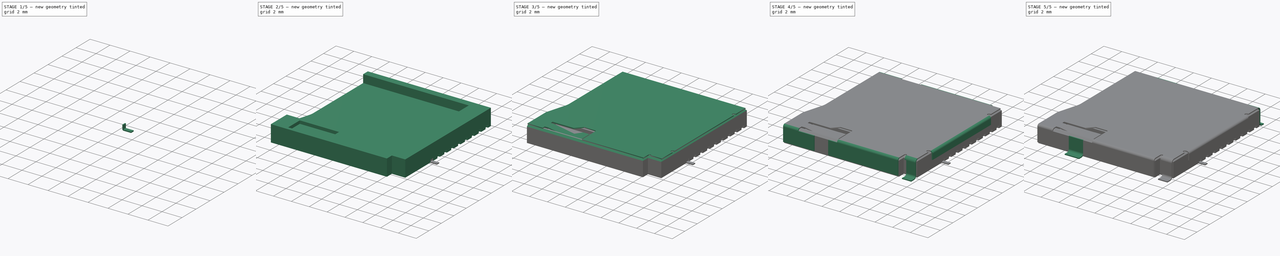
[diagram: build sequence overview — one tinted view per stage of 5, left to right]
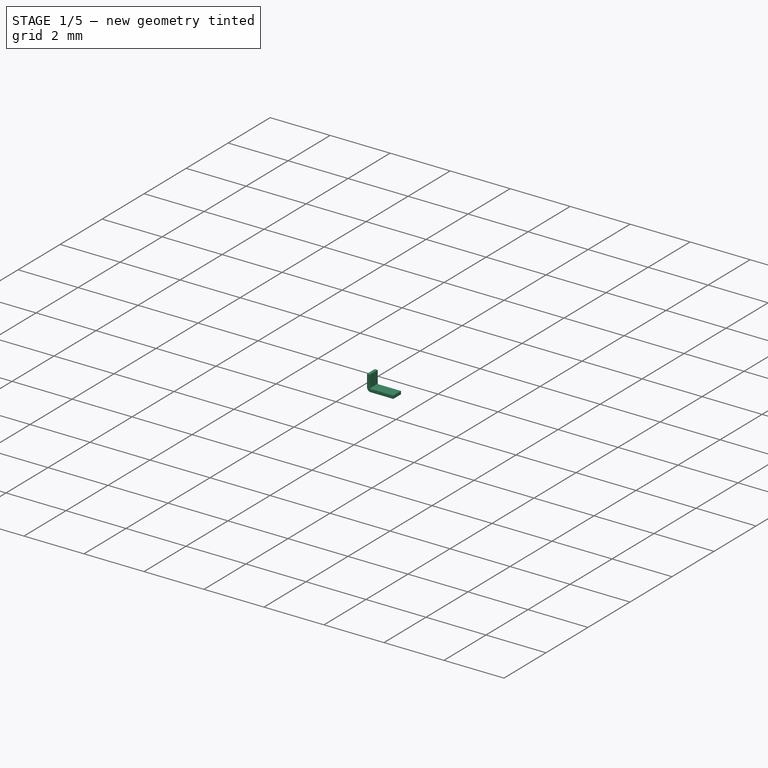
[diagram: stage 1 of 5 — iso view after this stage's code; geometry added in this stage tinted green]
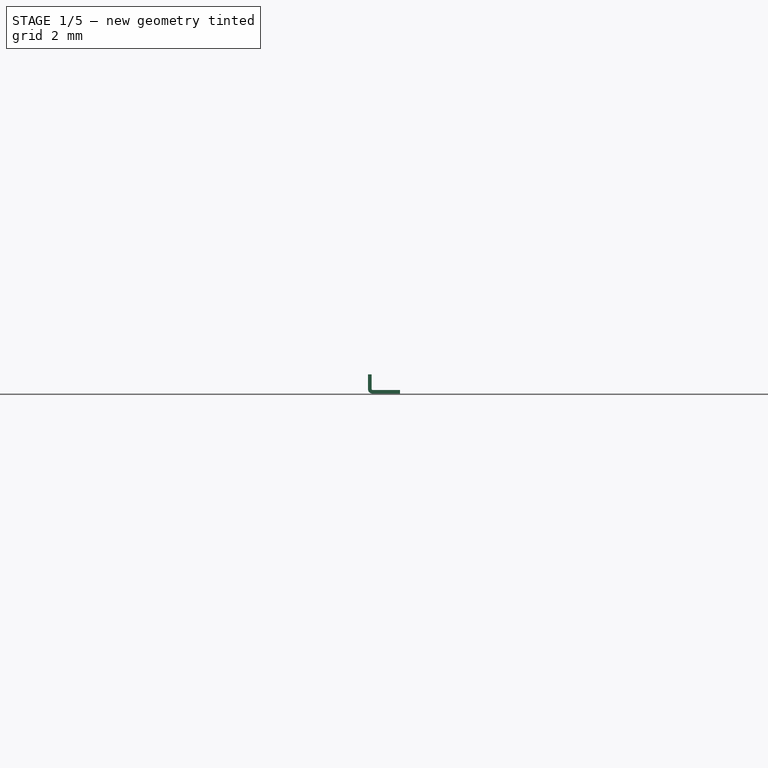
[diagram: stage 1 of 5 — front view after this stage's code; geometry added in this stage tinted green]
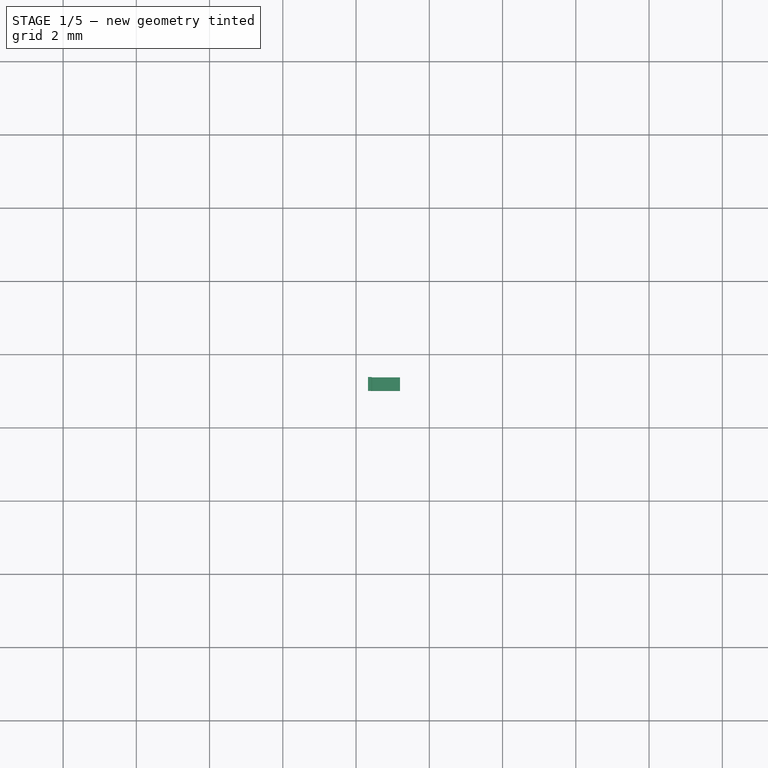
[diagram: stage 1 of 5 — top view after this stage's code; geometry added in this stage tinted green]
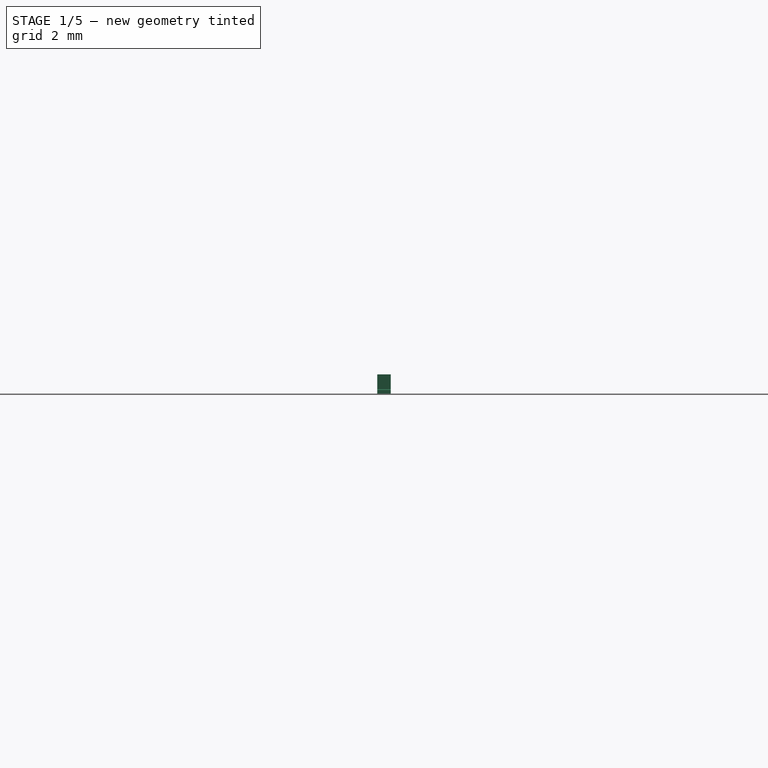
[diagram: stage 1 of 5 — right view after this stage's code; geometry added in this stage tinted green]
FCSTD DOCUMENT  (FreeCAD 0.18R4 (GitTag))
Label: TF-01A
License: All rights reserved
LicenseURL: http://en.wikipedia.org/wiki/All_rights_reserved
objects: Sketcher::SketchObject×16, PartDesign::FeaturePython×14, PartDesign::Pad×12, PartDesign::Body×11, PartDesign::Pocket×4, Part::Feature×3, PartDesign::Chamfer×2, Image::ImagePlane×1, PartDesign::Fillet×1
note: 79 computed .brp shape members not serialized (recipe doc carries the construction recipe); baked Part::Feature solids carry a one-line shape summary decoded from their .brp

FEATURE [PartDesign::Body] Body004  label="Pin2"
  Group = -> [Sketch009,Pad005]
  Origin = -> Origin004
  Placement = pos=(0,1.1,0) rot=(0,0,1;0rad)
  Tip = -> Pad005
FEATURE [Sketcher::SketchObject] Sketch010
  AttachmentOffset = pos=(14.45,0.1,-5.01) rot=(0,0,1;0rad)
  MapMode = 5
  Placement = pos=(14.45,5.01,0.1) rot=(1,0,0;1.5708rad)
  Support = -> [XZ_Plane005]
  sketch-geometry (8):
    g0: LineSegment StartX=-0.124999 StartY=0.425 StartZ=0 EndX=-0.124999 EndY=0.025 EndZ=0
    g1: LineSegment StartX=9.69462e-07 StartY=-0.1 StartZ=0 EndX=0.750001 EndY=-0.1 EndZ=0
    g2: LineSegment StartX=0.750001 StartY=-0.1 StartZ=0 EndX=0.750001 EndY=0 EndZ=0
    g3: LineSegment StartX=0.750001 StartY=0 StartZ=0 EndX=0 EndY=0 EndZ=0
    g4: LineSegment StartX=-0.024999 StartY=0.024999 StartZ=0 EndX=-0.024999 EndY=0.425 EndZ=0
    g5: LineSegment StartX=-0.024999 StartY=0.425 StartZ=0 EndX=-0.124999 EndY=0.425 EndZ=0
    g6: ArcOfCircle CenterX=9.69462e-07 CenterY=0.025 CenterZ=0 NormalX=0 NormalY=0 NormalZ=1 AngleXU=0 Radius=0.125 StartAngle=3.14159 EndAngle=4.71239
    g7: ArcOfCircle CenterX=0 CenterY=0.024999 CenterZ=0 NormalX=0 NormalY=0 NormalZ=1 AngleXU=0 Radius=0.024999 StartAngle=3.14159 EndAngle=4.71239
  constraints (21):
    c: Vertical(g0)
    c: Horizontal(g1)
    c: Coincident(g1,g2)
    c: Coincident(g2,g3)
    c: Coincident(g4,g5)
    c: Coincident(g5,g0)
    c: Horizontal(g5)
    c: Horizontal(g3)
    c: Vertical(g4)
    c: Vertical(g2)
    c: DistanceY(g2,g2) = 0.1
    c: Tangent(g1,g6) = -1.5708
    c: Tangent(g0,g6) = -1.5708
    c: Diameter(g6) = 0.25
    c: Tangent(g4,g7) = 1.5708
    c: Tangent(g3,g7) = 1.5708
    c: Equal(g2,g5)
    c: Distance(g3,g1) = 0.1
    c: Coincident(g3,g-1)
    c: DistanceX(g1,g1) = 0.75
    c: DistanceY(g0,g0) = 0.4
FEATURE [PartDesign::Pad] Pad006
  Length = 0.37
  Length2 = 100
  Placement = pos=(0,0,0) rot=(1,0,0;1.5708rad)
  Profile = -> Sketch010
  Reversed = true
  Type = 0
FEATURE [PartDesign::Body] Body005  label="Pin3"
  Group = -> [Sketch010,Pad006]
  Origin = -> Origin005
  Placement = pos=(0,2.2,0) rot=(0,0,1;0rad)
  Tip = -> Pad006
FEATURE [Sketcher::SketchObject] Sketch011
  AttachmentOffset = pos=(14.45,0.1,-5.01) rot=(0,0,1;0rad)
  MapMode = 5
  Placement = pos=(14.45,5.01,0.1) rot=(1,0,0;1.5708rad)
  Support = -> [XZ_Plane006]
  sketch-geometry (8):
    g0: LineSegment StartX=-0.124999 StartY=0.425 StartZ=0 EndX=-0.124999 EndY=0.025 EndZ=0
    g1: LineSegment StartX=9.69462e-07 StartY=-0.1 StartZ=0 EndX=0.750001 EndY=-0.1 EndZ=0
    g2: LineSegment StartX=0.750001 StartY=-0.1 StartZ=0 EndX=0.750001 EndY=0 EndZ=0
    g3: LineSegment StartX=0.750001 StartY=0 StartZ=0 EndX=0 EndY=0 EndZ=0
    g4: LineSegment StartX=-0.024999 StartY=0.024999 StartZ=0 EndX=-0.024999 EndY=0.425 EndZ=0
    g5: LineSegment StartX=-0.024999 StartY=0.425 StartZ=0 EndX=-0.124999 EndY=0.425 EndZ=0
    g6: ArcOfCircle CenterX=9.69462e-07 CenterY=0.025 CenterZ=0 NormalX=0 NormalY=0 NormalZ=1 AngleXU=0 Radius=0.125 StartAngle=3.14159 EndAngle=4.71239
    g7: ArcOfCircle CenterX=0 CenterY=0.024999 CenterZ=0 NormalX=0 NormalY=0 NormalZ=1 AngleXU=0 Radius=0.024999 StartAngle=3.14159 EndAngle=4.71239
  constraints (21):
    c: Vertical(g0)
    c: Horizontal(g1)
    c: Coincident(g1,g2)
    c: Coincident(g2,g3)
    c: Coincident(g4,g5)
    c: Coincident(g5,g0)
    c: Horizontal(g5)
    c: Horizontal(g3)
    c: Vertical(g4)
    c: Vertical(g2)
    c: DistanceY(g2,g2) = 0.1
    c: Tangent(g1,g6) = -1.5708
    c: Tangent(g0,g6) = -1.5708
    c: Diameter(g6) = 0.25
    c: Tangent(g4,g7) = 1.5708
    c: Tangent(g3,g7) = 1.5708
    c: Equal(g2,g5)
    c: Distance(g3,g1) = 0.1
    c: Coincident(g3,g-1)
    c: DistanceX(g1,g1) = 0.75
    c: DistanceY(g0,g0) = 0.4
FEATURE [PartDesign::Pad] Pad007
  Length = 0.37
  Length2 = 100
  Placement = pos=(0,0,0) rot=(1,0,0;1.5708rad)
  Profile = -> Sketch011
  Reversed = true
  Type = 0
FEATURE [PartDesign::Body] Body006  label="Pin4"
  Group = -> [Sketch011,Pad007]
  Origin = -> Origin006
  Placement = pos=(0,3.3,0) rot=(0,0,1;0rad)
  Tip = -> Pad007
FEATURE [Sketcher::SketchObject] Sketch012
  AttachmentOffset = pos=(14.45,0.1,-5.01) rot=(0,0,1;0rad)
  MapMode = 5
  Placement = pos=(14.45,5.01,0.1) rot=(1,0,0;1.5708rad)
  Support = -> [XZ_Plane007]
  sketch-geometry (8):
    g0: LineSegment StartX=-0.124999 StartY=0.425 StartZ=0 EndX=-0.124999 EndY=0.025 EndZ=0
    g1: LineSegment StartX=9.69462e-07 StartY=-0.1 StartZ=0 EndX=0.750001 EndY=-0.1 EndZ=0
    g2: LineSegment StartX=0.750001 StartY=-0.1 StartZ=0 EndX=0.750001 EndY=0 EndZ=0
    g3: LineSegment StartX=0.750001 StartY=0 StartZ=0 EndX=0 EndY=0 EndZ=0
    g4: LineSegment StartX=-0.024999 StartY=0.024999 StartZ=0 EndX=-0.024999 EndY=0.425 EndZ=0
    g5: LineSegment StartX=-0.024999 StartY=0.425 StartZ=0 EndX=-0.124999 EndY=0.425 EndZ=0
    g6: ArcOfCircle CenterX=9.69462e-07 CenterY=0.025 CenterZ=0 NormalX=0 NormalY=0 NormalZ=1 AngleXU=0 Radius=0.125 StartAngle=3.14159 EndAngle=4.71239
    g7: ArcOfCircle CenterX=0 CenterY=0.024999 CenterZ=0 NormalX=0 NormalY=0 NormalZ=1 AngleXU=0 Radius=0.024999 StartAngle=3.14159 EndAngle=4.71239
  constraints (21):
    c: Vertical(g0)
    c: Horizontal(g1)
    c: Coincident(g1,g2)
    c: Coincident(g2,g3)
    c: Coincident(g4,g5)
    c: Coincident(g5,g0)
    c: Horizontal(g5)
    c: Horizontal(g3)
    c: Vertical(g4)
    c: Vertical(g2)
    c: DistanceY(g2,g2) = 0.1
    c: Tangent(g1,g6) = -1.5708
    c: Tangent(g0,g6) = -1.5708
    c: Diameter(g6) = 0.25
    c: Tangent(g4,g7) = 1.5708
    c: Tangent(g3,g7) = 1.5708
    c: Equal(g2,g5)
    c: Distance(g3,g1) = 0.1
    c: Coincident(g3,g-1)
    c: DistanceX(g1,g1) = 0.75
    c: DistanceY(g0,g0) = 0.4
FEATURE [PartDesign::Pad] Pad008
  Length = 0.37
  Length2 = 100
  Placement = pos=(0,0,0) rot=(1,0,0;1.5708rad)
  Profile = -> Sketch012
  Reversed = true
  Type = 0
FEATURE [PartDesign::Body] Body007  label="Pin5"
  Group = -> [Sketch012,Pad008]
  Origin = -> Origin007
  Placement = pos=(0,4.4,0) rot=(0,0,1;0rad)
  Tip = -> Pad008
FEATURE [Sketcher::SketchObject] Sketch013
  AttachmentOffset = pos=(14.45,0.1,-5.01) rot=(0,0,1;0rad)
  MapMode = 5
  Placement = pos=(14.45,5.01,0.1) rot=(1,0,0;1.5708rad)
  Support = -> [XZ_Plane008]
  sketch-geometry (8):
    g0: LineSegment StartX=-0.124999 StartY=0.425 StartZ=0 EndX=-0.124999 EndY=0.025 EndZ=0
    g1: LineSegment StartX=9.69462e-07 StartY=-0.1 StartZ=0 EndX=0.750001 EndY=-0.1 EndZ=0
    g2: LineSegment StartX=0.750001 StartY=-0.1 StartZ=0 EndX=0.750001 EndY=0 EndZ=0
    g3: LineSegment StartX=0.750001 StartY=0 StartZ=0 EndX=0 EndY=0 EndZ=0
    g4: LineSegment StartX=-0.024999 StartY=0.024999 StartZ=0 EndX=-0.024999 EndY=0.425 EndZ=0
    g5: LineSegment StartX=-0.024999 StartY=0.425 StartZ=0 EndX=-0.124999 EndY=0.425 EndZ=0
    g6: ArcOfCircle CenterX=9.69462e-07 CenterY=0.025 CenterZ=0 NormalX=0 NormalY=0 NormalZ=1 AngleXU=0 Radius=0.125 StartAngle=3.14159 EndAngle=4.71239
    g7: ArcOfCircle CenterX=0 CenterY=0.024999 CenterZ=0 NormalX=0 NormalY=0 NormalZ=1 AngleXU=0 Radius=0.024999 StartAngle=3.14159 EndAngle=4.71239
  constraints (21):
    c: Vertical(g0)
    c: Horizontal(g1)
    c: Coincident(g1,g2)
    c: Coincident(g2,g3)
    c: Coincident(g4,g5)
    c: Coincident(g5,g0)
    c: Horizontal(g5)
    c: Horizontal(g3)
    c: Vertical(g4)
    c: Vertical(g2)
    c: DistanceY(g2,g2) = 0.1
    c: Tangent(g1,g6) = -1.5708
    c: Tangent(g0,g6) = -1.5708
    c: Diameter(g6) = 0.25
    c: Tangent(g4,g7) = 1.5708
    c: Tangent(g3,g7) = 1.5708
    c: Equal(g2,g5)
    c: Distance(g3,g1) = 0.1
    c: Coincident(g3,g-1)
    c: DistanceX(g1,g1) = 0.75
    c: DistanceY(g0,g0) = 0.4
FEATURE [PartDesign::Pad] Pad009
  Length = 0.37
  Length2 = 100
  Placement = pos=(0,0,0) rot=(1,0,0;1.5708rad)
  Profile = -> Sketch013
  Reversed = true
  Type = 0
FEATURE [PartDesign::Body] Body008  label="Pin6"
  Group = -> [Sketch013,Pad009]
  Origin = -> Origin008
  Placement = pos=(0,5.5,0) rot=(0,0,1;0rad)
  Tip = -> Pad009
FEATURE [Sketcher::SketchObject] Sketch014
  AttachmentOffset = pos=(14.45,0.1,-5.01) rot=(0,0,1;0rad)
  MapMode = 5
  Placement = pos=(14.45,5.01,0.1) rot=(1,0,0;1.5708rad)
  Support = -> [XZ_Plane009]
  sketch-geometry (8):
    g0: LineSegment StartX=-0.124999 StartY=0.425 StartZ=0 EndX=-0.124999 EndY=0.025 EndZ=0
    g1: LineSegment StartX=9.69462e-07 StartY=-0.1 StartZ=0 EndX=0.750001 EndY=-0.1 EndZ=0
    g2: LineSegment StartX=0.750001 StartY=-0.1 StartZ=0 EndX=0.750001 EndY=0 EndZ=0
    g3: LineSegment StartX=0.750001 StartY=0 StartZ=0 EndX=0 EndY=0 EndZ=0
    g4: LineSegment StartX=-0.024999 StartY=0.024999 StartZ=0 EndX=-0.024999 EndY=0.425 EndZ=0
    g5: LineSegment StartX=-0.024999 StartY=0.425 StartZ=0 EndX=-0.124999 EndY=0.425 EndZ=0
    g6: ArcOfCircle CenterX=9.69462e-07 CenterY=0.025 CenterZ=0 NormalX=0 NormalY=0 NormalZ=1 AngleXU=0 Radius=0.125 StartAngle=3.14159 EndAngle=4.71239
    g7: ArcOfCircle CenterX=0 CenterY=0.024999 CenterZ=0 NormalX=0 NormalY=0 NormalZ=1 AngleXU=0 Radius=0.024999 StartAngle=3.14159 EndAngle=4.71239
  constraints (21):
    c: Vertical(g0)
    c: Horizontal(g1)
    c: Coincident(g1,g2)
    c: Coincident(g2,g3)
    c: Coincident(g4,g5)
    c: Coincident(g5,g0)
    c: Horizontal(g5)
    c: Horizontal(g3)
    c: Vertical(g4)
    c: Vertical(g2)
    c: DistanceY(g2,g2) = 0.1
    c: Tangent(g1,g6) = -1.5708
    c: Tangent(g0,g6) = -1.5708
    c: Diameter(g6) = 0.25
    c: Tangent(g4,g7) = 1.5708
    c: Tangent(g3,g7) = 1.5708
    c: Equal(g2,g5)
    c: Distance(g3,g1) = 0.1
    c: Coincident(g3,g-1)
    c: DistanceX(g1,g1) = 0.75
    c: DistanceY(g0,g0) = 0.4
FEATURE [PartDesign::Pad] Pad010
  Length = 0.37
  Length2 = 100
  Placement = pos=(0,0,0) rot=(1,0,0;1.5708rad)
  Profile = -> Sketch014
  Reversed = true
  Type = 0
FEATURE [PartDesign::Body] Body009  label="Pin7"
  Group = -> [Sketch014,Pad010]
  Origin = -> Origin009
  Placement = pos=(0,6.6,0) rot=(0,0,1;0rad)
  Tip = -> Pad010
FEATURE [Sketcher::SketchObject] Sketch015
  AttachmentOffset = pos=(14.45,0.1,-5.01) rot=(0,0,1;0rad)
  MapMode = 5
  Placement = pos=(14.45,5.01,0.1) rot=(1,0,0;1.5708rad)
  Support = -> [XZ_Plane010]
  sketch-geometry (8):
    g0: LineSegment StartX=-0.124999 StartY=0.425 StartZ=0 EndX=-0.124999 EndY=0.025 EndZ=0
    g1: LineSegment StartX=9.69462e-07 StartY=-0.1 StartZ=0 EndX=0.750001 EndY=-0.1 EndZ=0
    g2: LineSegment StartX=0.750001 StartY=-0.1 StartZ=0 EndX=0.750001 EndY=0 EndZ=0
    g3: LineSegment StartX=0.750001 StartY=0 StartZ=0 EndX=0 EndY=0 EndZ=0
    g4: LineSegment StartX=-0.024999 StartY=0.024999 StartZ=0 EndX=-0.024999 EndY=0.425 EndZ=0
    g5: LineSegment StartX=-0.024999 StartY=0.425 StartZ=0 EndX=-0.124999 EndY=0.425 EndZ=0
    g6: ArcOfCircle CenterX=9.69462e-07 CenterY=0.025 CenterZ=0 NormalX=0 NormalY=0 NormalZ=1 AngleXU=0 Radius=0.125 StartAngle=3.14159 EndAngle=4.71239
    g7: ArcOfCircle CenterX=0 CenterY=0.024999 CenterZ=0 NormalX=0 NormalY=0 NormalZ=1 AngleXU=0 Radius=0.024999 StartAngle=3.14159 EndAngle=4.71239
  constraints (21):
    c: Vertical(g0)
    c: Horizontal(g1)
    c: Coincident(g1,g2)
    c: Coincident(g2,g3)
    c: Coincident(g4,g5)
    c: Coincident(g5,g0)
    c: Horizontal(g5)
    c: Horizontal(g3)
    c: Vertical(g4)
    c: Vertical(g2)
    c: DistanceY(g2,g2) = 0.1
    c: Tangent(g1,g6) = -1.5708
    c: Tangent(g0,g6) = -1.5708
    c: Diameter(g6) = 0.25
    c: Tangent(g4,g7) = 1.5708
    c: Tangent(g3,g7) = 1.5708
    c: Equal(g2,g5)
    c: Distance(g3,g1) = 0.1
    c: Coincident(g3,g-1)
    c: DistanceX(g1,g1) = 0.75
    c: DistanceY(g0,g0) = 0.4
FEATURE [PartDesign::Pad] Pad011
  Length = 0.37
  Length2 = 100
  Placement = pos=(0,0,0) rot=(1,0,0;1.5708rad)
  Profile = -> Sketch015
  Reversed = true
  Type = 0
FEATURE [PartDesign::Body] Body010  label="Pin8"
  Group = -> [Sketch015,Pad011]
  Origin = -> Origin010
  Placement = pos=(0,7.7,0) rot=(0,0,1;0rad)
  Tip = -> Pad011
FEATURE [Sketcher::SketchObject] Sketch016
  AttachmentOffset = pos=(14.45,0.1,-5.01) rot=(0,0,1;0rad)
  MapMode = 5
  Placement = pos=(14.45,5.01,0.1) rot=(1,0,0;1.5708rad)
  Support = -> [XZ_Plane011]
  sketch-geometry (8):
    g0: LineSegment StartX=-0.124999 StartY=0.425 StartZ=0 EndX=-0.124999 EndY=0.025 EndZ=0
    g1: LineSegment StartX=9.69462e-07 StartY=-0.1 StartZ=0 EndX=0.750001 EndY=-0.1 EndZ=0
    g2: LineSegment StartX=0.750001 StartY=-0.1 StartZ=0 EndX=0.750001 EndY=0 EndZ=0
    g3: LineSegment StartX=0.750001 StartY=0 StartZ=0 EndX=0 EndY=0 EndZ=0
    g4: LineSegment StartX=-0.024999 StartY=0.024999 StartZ=0 EndX=-0.024999 EndY=0.425 EndZ=0
    g5: LineSegment StartX=-0.024999 StartY=0.425 StartZ=0 EndX=-0.124999 EndY=0.425 EndZ=0
    g6: ArcOfCircle CenterX=9.69462e-07 CenterY=0.025 CenterZ=0 NormalX=0 NormalY=0 NormalZ=1 AngleXU=0 Radius=0.125 StartAngle=3.14159 EndAngle=4.71239
    g7: ArcOfCircle CenterX=0 CenterY=0.024999 CenterZ=0 NormalX=0 NormalY=0 NormalZ=1 AngleXU=0 Radius=0.024999 StartAngle=3.14159 EndAngle=4.71239
  constraints (21):
    c: Vertical(g0)
    c: Horizontal(g1)
    c: Coincident(g1,g2)
    c: Coincident(g2,g3)
    c: Coincident(g4,g5)
    c: Coincident(g5,g0)
    c: Horizontal(g5)
    c: Horizontal(g3)
    c: Vertical(g4)
    c: Vertical(g2)
    c: DistanceY(g2,g2) = 0.1
    c: Tangent(g1,g6) = -1.5708
    c: Tangent(g0,g6) = -1.5708
    c: Diameter(g6) = 0.25
    c: Tangent(g4,g7) = 1.5708
    c: Tangent(g3,g7) = 1.5708
    c: Equal(g2,g5)
    c: Distance(g3,g1) = 0.1
    c: Coincident(g3,g-1)
    c: DistanceX(g1,g1) = 0.75
    c: DistanceY(g0,g0) = 0.4
FEATURE [PartDesign::Pad] Pad012
  Length = 0.37
  Length2 = 100
  Placement = pos=(0,0,0) rot=(1,0,0;1.5708rad)
  Profile = -> Sketch016
  Reversed = true
  Type = 0
FEATURE [PartDesign::Body] Body011  label="Pin9"
  Group = -> [Sketch016,Pad012]
  Origin = -> Origin011
  Placement = pos=(0,8.8,0) rot=(0,0,1;0rad)
  Tip = -> Pad012
FEATURE [Part::Feature] Body002001  label="RefinedFrame"
  shape: bbox 14.75 x 16.1 x 2 mm, 100 faces (baked)
FEATURE [Part::Feature] Body002002  label="RefinedBody"
  shape: bbox 14.5 x 14.5 x 2.25 mm, 73 faces (baked)
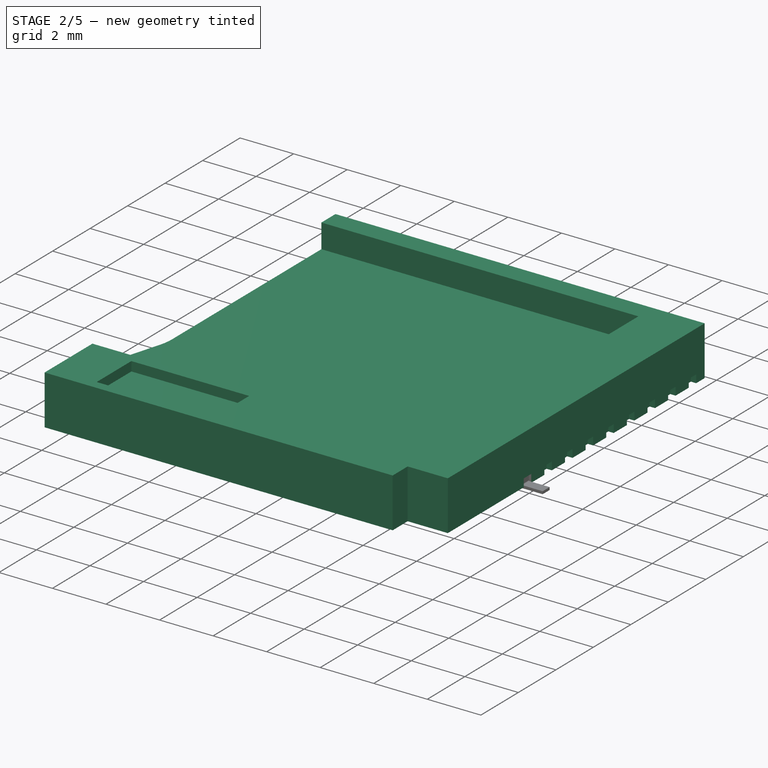
[diagram: stage 2 of 5 — iso view after this stage's code; geometry added in this stage tinted green]
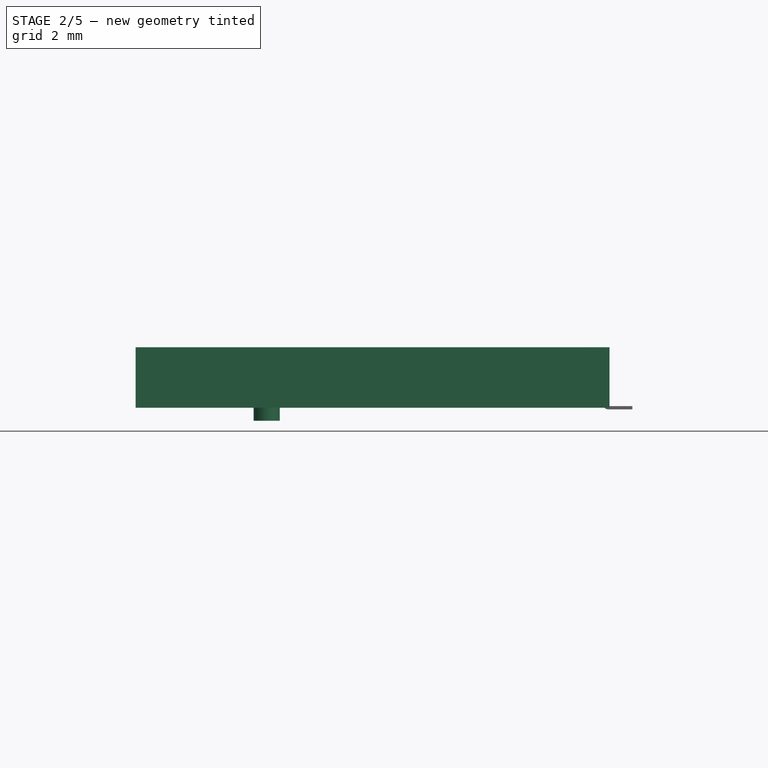
[diagram: stage 2 of 5 — front view after this stage's code; geometry added in this stage tinted green]
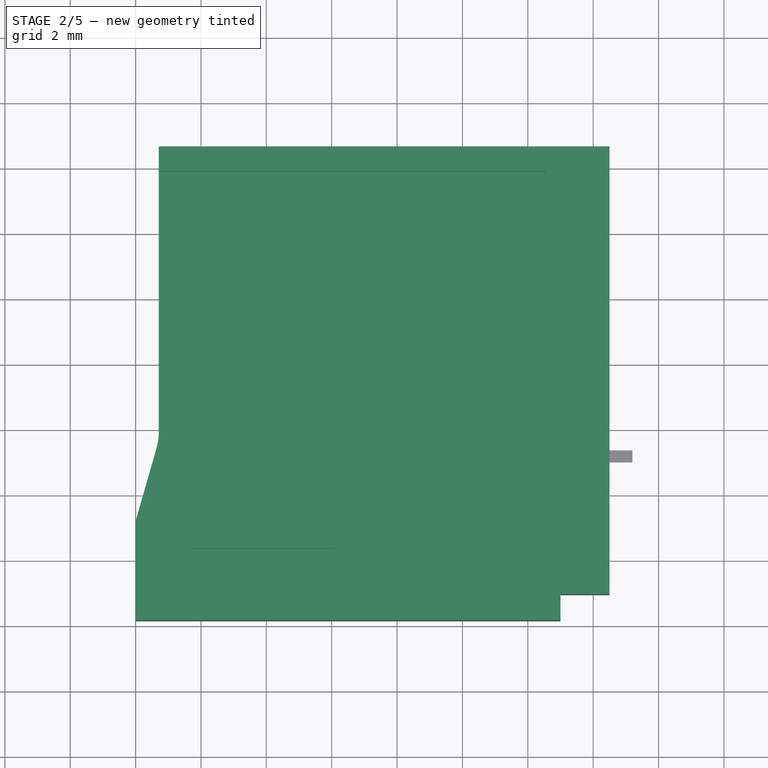
[diagram: stage 2 of 5 — top view after this stage's code; geometry added in this stage tinted green]
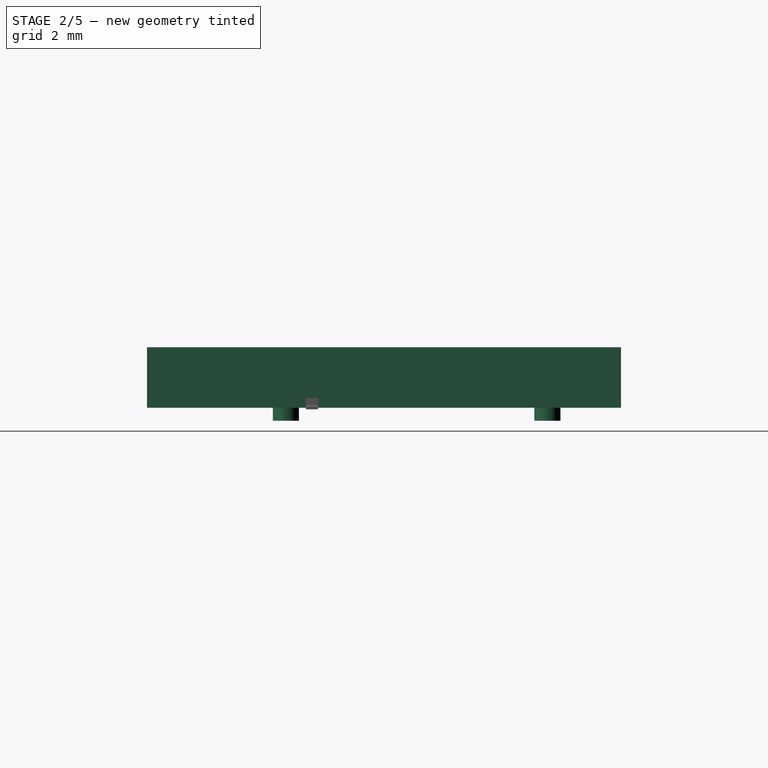
[diagram: stage 2 of 5 — right view after this stage's code; geometry added in this stage tinted green]
FEATURE [Sketcher::SketchObject] Sketch004
  AttachmentOffset = pos=(0,0,0.05) rot=(0,0,1;0rad)
  MapMode = 5
  Placement = pos=(0,0,0.05) rot=(0,0,1;0rad)
  Support = -> [XY_Plane]
  sketch-geometry (9):
    g0: LineSegment StartX=0.71 StartY=14.65 StartZ=0 EndX=0.71 EndY=5.95 EndZ=0
    g1: LineSegment StartX=0.634493 StartY=5.41274 StartZ=0 EndX=1e-16 EndY=3.2 EndZ=0
    g2: LineSegment StartX=1e-16 StartY=3.2 StartZ=0 EndX=1e-16 EndY=0.15 EndZ=0
    g3: LineSegment StartX=13 StartY=0.15 StartZ=0 EndX=13 EndY=0.95 EndZ=0
    g4: LineSegment StartX=13 StartY=0.95 StartZ=0 EndX=14.5 EndY=0.95 EndZ=0
    g5: ArcOfCircle CenterX=-1.23915 CenterY=5.95 CenterZ=0 NormalX=0 NormalY=0 NormalZ=1 AngleXU=0 Radius=1.94915 StartAngle=6.00393 EndAngle=6.28319
    g6: LineSegment StartX=14.5 StartY=0.95 StartZ=0 EndX=14.5 EndY=14.65 EndZ=0
    g7: LineSegment StartX=1e-16 StartY=0.15 StartZ=0 EndX=13 EndY=0.15 EndZ=0
    g8: LineSegment StartX=0.71 StartY=14.65 StartZ=0 EndX=14.5 EndY=14.65 EndZ=0
  constraints (26):
    c: Vertical(g0)
    c: Coincident(g1,g2)
    c: Vertical(g2)
    c: Vertical(g3)
    c: Horizontal(g4)
    c: DistanceX(g2,g4) = 14.5
    c: DistanceY(g2,g0) = 14.5
    c: DistanceX(g0,g6) = 13.79
    c: Tangent(g1,g5) = 1.5708
    c: Tangent(g0,g5) = 1.5708
    c: Angle(g5) = 0.279253
    c: DistanceY(g2,g2) = 3.05
    c: DistanceY(g0,g0) = 8.7
    c: Coincident(g6,g4)
    c: Vertical(g6)
    c: Vertical(g2,g-1)
    c: DistanceY(g-1,g2) = 0.15
    c: Coincident(g7,g3)
    c: Horizontal(g7)
    c: DistanceX(g3,g4) = 1.5
    c: Coincident(g7,g2)
    c: Coincident(g4,g3)
    c: Coincident(g8,g0)
    c: Coincident(g8,g6)
    c: Horizontal(g8)
    c: DistanceY(g3,g3) = 0.8
FEATURE [PartDesign::Pad] Pad
  Length = 1.85
  Length2 = 100
  Profile = -> Sketch004
  Type = 0
FEATURE [Sketcher::SketchObject] Sketch
  AttachmentOffset = pos=(0,0,0.05) rot=(0,0,1;0rad)
  MapMode = 5
  Placement = pos=(0,0,1.95) rot=(0,0,1;0rad)
  Support = -> [Pad]
  sketch-geometry (4):
    g0: LineSegment StartX=1.7 StartY=0.5 StartZ=0 EndX=6.1 EndY=0.5 EndZ=0
    g1: LineSegment StartX=6.1 StartY=0.5 StartZ=0 EndX=6.1 EndY=2.35 EndZ=0
    g2: LineSegment StartX=6.1 StartY=2.35 StartZ=0 EndX=1.7 EndY=2.35 EndZ=0
    g3: LineSegment StartX=1.7 StartY=2.35 StartZ=0 EndX=1.7 EndY=0.5 EndZ=0
  constraints (12):
    c: Horizontal(g0)
    c: Coincident(g0,g1)
    c: Vertical(g1)
    c: Coincident(g1,g2)
    c: Horizontal(g2)
    c: Coincident(g2,g3)
    c: Coincident(g3,g0)
    c: Vertical(g3)
    c: DistanceX(g-1,g0) = 1.7
    c: DistanceY(g-1,g0) = 0.5
    c: DistanceY(g3,g3) = 1.85
    c: DistanceX(g0,g0) = 4.4
FEATURE [PartDesign::Pocket] Pocket001
  BaseFeature = -> Pad
  Length = 0.4
  Length2 = 100
  Profile = -> Sketch
  Type = 0
FEATURE [Sketcher::SketchObject] Sketch005
  AttachmentOffset = pos=(0,0,0.05) rot=(0,0,1;0rad)
  MapMode = 5
  Placement = pos=(-0.05,0,0) rot=(0.57735,-0.57735,-0.57735;2.0944rad)
  Support = -> [Pocket001]
  sketch-geometry (4):
    g0: LineSegment StartX=-13.9 StartY=1 StartZ=0 EndX=-2.7 EndY=1 EndZ=0
    g1: LineSegment StartX=-2.7 StartY=1 StartZ=0 EndX=-2.7 EndY=1.9 EndZ=0
    g2: LineSegment StartX=-2.7 StartY=1.9 StartZ=0 EndX=-13.9 EndY=1.9 EndZ=0
    g3: LineSegment StartX=-13.9 StartY=1.9 StartZ=0 EndX=-13.9 EndY=1 EndZ=0
  constraints (12):
    c: Coincident(g0,g1)
    c: Coincident(g1,g2)
    c: Coincident(g2,g3)
    c: Coincident(g3,g0)
    c: Horizontal(g0)
    c: Horizontal(g2)
    c: Vertical(g1)
    c: Vertical(g3)
    c: DistanceX(g0,g-1) = 13.9
    c: DistanceX(g2,g2) = 11.2
    c: DistanceY(g-1,g1) = 1.9
    c: DistanceY(g3,g3) = 0.9
FEATURE [PartDesign::Pocket] Pocket002
  BaseFeature = -> Pocket001
  Length = 12.6
  Length2 = 100
  Profile = -> Sketch005
  Type = 0
FEATURE [Sketcher::SketchObject] Sketch006
  AttachmentOffset = pos=(0,0,0.05) rot=(0,0,1;0rad)
  MapMode = 5
  Placement = pos=(0,0,0.05) rot=(0,0,1;0rad)
  Support = -> [XY_Plane]
  sketch-geometry (2):
    g0: Circle CenterX=4.01 CenterY=4.4 CenterZ=0 NormalX=0 NormalY=0 NormalZ=1 AngleXU=0 Radius=0.4
    g1: Circle CenterX=4.01 CenterY=12.4 CenterZ=0 NormalX=0 NormalY=0 NormalZ=1 AngleXU=0 Radius=0.4
  constraints (6):
    c: Vertical(g1,g0)
    c: Equal(g1,g0)
    c: DistanceY(g0,g1) = 8
    c: Diameter(g1) = 0.8
    c: DistanceX(g-1,g0) = 4.01
    c: DistanceY(g-1,g1) = 12.4
FEATURE [PartDesign::Pad] Pad003
  BaseFeature = -> Pocket002
  Length = 0.4
  Length2 = 100
  Profile = -> Sketch006
  Reversed = true
  Type = 0
FEATURE [PartDesign::Body] Body003  label="Pin1"
  Group = -> [Sketch007,Pad004]
  Origin = -> Origin003
  Tip = -> Pad004
FEATURE [Sketcher::SketchObject] Sketch008
  AttachmentOffset = pos=(0,0,0.05) rot=(0,0,1;0rad)
  MapMode = 5
  Placement = pos=(0,0,0.05) rot=(0,0,1;0rad)
  Support = -> [XY_Plane]
  sketch-geometry (44):
    g0: LineSegment StartX=14.3 StartY=5 StartZ=0 EndX=14.5 EndY=5 EndZ=0
    g1: LineSegment StartX=14.5 StartY=5 StartZ=0 EndX=14.5 EndY=5.4 EndZ=0
    g2: LineSegment StartX=14.5 StartY=5.4 StartZ=0 EndX=14.3 EndY=5.4 EndZ=0
    g3: LineSegment StartX=14.3 StartY=5.4 StartZ=0 EndX=14.3 EndY=5 EndZ=0
    g4: LineSegment StartX=14.3 StartY=6.1 StartZ=0 EndX=14.5 EndY=6.1 EndZ=0
    g5: LineSegment StartX=14.5 StartY=6.1 StartZ=0 EndX=14.5 EndY=6.5 EndZ=0
    g6: LineSegment StartX=14.5 StartY=6.5 StartZ=0 EndX=14.3 EndY=6.5 EndZ=0
    g7: LineSegment StartX=14.3 StartY=6.5 StartZ=0 EndX=14.3 EndY=6.1 EndZ=0
    g8: LineSegment StartX=14.3 StartY=7.2 StartZ=0 EndX=14.5 EndY=7.2 EndZ=0
    g9: LineSegment StartX=14.5 StartY=7.2 StartZ=0 EndX=14.5 EndY=7.6 EndZ=0
    g10: LineSegment StartX=14.5 StartY=7.6 StartZ=0 EndX=14.3 EndY=7.6 EndZ=0
    g11: LineSegment StartX=14.3 StartY=7.6 StartZ=0 EndX=14.3 EndY=7.2 EndZ=0
    g12: LineSegment StartX=14.3 StartY=8.3 StartZ=0 EndX=14.5 EndY=8.3 EndZ=0
    g13: LineSegment StartX=14.5 StartY=8.3 StartZ=0 EndX=14.5 EndY=8.7 EndZ=0
    g14: LineSegment StartX=14.5 StartY=8.7 StartZ=0 EndX=14.3 EndY=8.7 EndZ=0
    g15: LineSegment StartX=14.3 StartY=8.7 StartZ=0 EndX=14.3 EndY=8.3 EndZ=0
    g16: LineSegment StartX=14.3 StartY=9.4 StartZ=0 EndX=14.5 EndY=9.4 EndZ=0
    g17: LineSegment StartX=14.5 StartY=9.4 StartZ=0 EndX=14.5 EndY=9.8 EndZ=0
    g18: LineSegment StartX=14.5 StartY=9.8 StartZ=0 EndX=14.3 EndY=9.8 EndZ=0
    g19: LineSegment StartX=14.3 StartY=9.8 StartZ=0 EndX=14.3 EndY=9.4 EndZ=0
    g20: LineSegment StartX=14.3 StartY=10.5 StartZ=0 EndX=14.5 EndY=10.5 EndZ=0
    g21: LineSegment StartX=14.5 StartY=10.5 StartZ=0 EndX=14.5 EndY=10.9 EndZ=0
    g22: LineSegment StartX=14.5 StartY=10.9 StartZ=0 EndX=14.3 EndY=10.9 EndZ=0
    g23: LineSegment StartX=14.3 StartY=10.9 StartZ=0 EndX=14.3 EndY=10.5 EndZ=0
    g24: LineSegment StartX=14.3 StartY=11.6 StartZ=0 EndX=14.5 EndY=11.6 EndZ=0
    g25: LineSegment StartX=14.5 StartY=11.6 StartZ=0 EndX=14.5 EndY=12 EndZ=0
    g26: LineSegment StartX=14.5 StartY=12 StartZ=0 EndX=14.3 EndY=12 EndZ=0
    g27: LineSegment StartX=14.3 StartY=12 StartZ=0 EndX=14.3 EndY=11.6 EndZ=0
    g28: LineSegment StartX=14.3 StartY=12.7 StartZ=0 EndX=14.5 EndY=12.7 EndZ=0
    g29: LineSegment StartX=14.5 StartY=12.7 StartZ=0 EndX=14.5 EndY=13.1 EndZ=0
    g30: LineSegment StartX=14.5 StartY=13.1 StartZ=0 EndX=14.3 EndY=13.1 EndZ=0
    g31: LineSegment StartX=14.3 StartY=13.1 StartZ=0 EndX=14.3 EndY=12.7 EndZ=0
    g32: LineSegment [constr] StartX=14.3 StartY=5.4 StartZ=0 EndX=14.3 EndY=6.1 EndZ=0
    g33: LineSegment [constr] StartX=14.3 StartY=6.5 StartZ=0 EndX=14.3 EndY=7.2 EndZ=0
    g34: LineSegment [constr] StartX=14.3 StartY=7.6 StartZ=0 EndX=14.3 EndY=8.3 EndZ=0
    g35: LineSegment [constr] StartX=14.3 StartY=8.7 StartZ=0 EndX=14.3 EndY=9.4 EndZ=0
    g36: LineSegment [constr] StartX=14.3 StartY=9.8 StartZ=0 EndX=14.3 EndY=10.5 EndZ=0
    g37: LineSegment [constr] StartX=14.3 StartY=10.9 StartZ=0 EndX=14.3 EndY=11.6 EndZ=0
    g38: LineSegment [constr] StartX=14.3 StartY=12 StartZ=0 EndX=14.3 EndY=12.7 EndZ=0
    g39: LineSegment StartX=14.3 StartY=13.8 StartZ=0 EndX=14.5 EndY=13.8 EndZ=0
    g40: LineSegment StartX=14.5 StartY=13.8 StartZ=0 EndX=14.5 EndY=14.2 EndZ=0
    g41: LineSegment StartX=14.5 StartY=14.2 StartZ=0 EndX=14.3 EndY=14.2 EndZ=0
    g42: LineSegment StartX=14.3 StartY=14.2 StartZ=0 EndX=14.3 EndY=13.8 EndZ=0
    g43: LineSegment [constr] StartX=14.3 StartY=13.1 StartZ=0 EndX=14.3 EndY=13.8 EndZ=0
  constraints (124):
    c: Coincident(g0,g1)
    c: Coincident(g1,g2)
    c: Coincident(g2,g3)
    c: Coincident(g3,g0)
    c: Horizontal(g0)
    c: Horizontal(g2)
    c: Vertical(g1)
    c: Vertical(g3)
    c: DistanceY(g-1,g0) = 5
    c: DistanceX(g0,g0) = 0.2
    c: DistanceY(g1,g1) = 0.4
    c: DistanceX(g-1,g0) = 14.5
    c: Coincident(g4,g5)
    c: Coincident(g5,g6)
    c: Coincident(g6,g7)
    c: Coincident(g7,g4)
    c: Horizontal(g4)
    c: Horizontal(g6)
    c: Vertical(g5)
    c: Vertical(g7)
    c: Coincident(g8,g9)
    c: Coincident(g9,g10)
    c: Coincident(g10,g11)
    c: Coincident(g11,g8)
    c: Horizontal(g8)
    c: Horizontal(g10)
    c: Vertical(g9)
    c: Vertical(g11)
    c: Coincident(g12,g13)
    c: Coincident(g13,g14)
    c: Coincident(g14,g15)
    c: Coincident(g15,g12)
    c: Horizontal(g12)
    c: Horizontal(g14)
    c: Vertical(g13)
    c: Vertical(g15)
    c: Coincident(g16,g17)
    c: Coincident(g17,g18)
    c: Coincident(g18,g19)
    c: Coincident(g19,g16)
    c: Horizontal(g16)
    c: Horizontal(g18)
    c: Vertical(g17)
    c: Vertical(g19)
    c: Coincident(g20,g21)
    c: Coincident(g21,g22)
    c: Coincident(g22,g23)
    c: Coincident(g23,g20)
    c: Horizontal(g20)
    c: Horizontal(g22)
    c: Vertical(g21)
    c: Vertical(g23)
    c: Coincident(g24,g25)
    c: Coincident(g25,g26)
    c: Coincident(g26,g27)
    c: Coincident(g27,g24)
    c: Horizontal(g24)
    c: Horizontal(g26)
    c: Vertical(g25)
    c: Vertical(g27)
    c: Coincident(g28,g29)
    c: Coincident(g29,g30)
    c: Coincident(g30,g31)
    c: Coincident(g31,g28)
    c: Horizontal(g28)
    c: Horizontal(g30)
    c: Vertical(g29)
    c: Vertical(g31)
    c: Vertical(g2,g4)
    c: Vertical(g6,g8)
    c: Vertical(g10,g12)
    c: Vertical(g15,g16)
    c: Vertical(g19,g20)
    c: Vertical(g23,g24)
    c: Vertical(g27,g28)
    c: Vertical(g26,g28)
    c: Vertical(g22,g24)
    c: Vertical(g18,g20)
    c: Vertical(g14,g16)
    c: Vertical(g10,g12)
    c: Vertical(g6,g8)
    c: Vertical(g4,g1)
    c: Coincident(g32,g2)
    c: Coincident(g32,g4)
    c: Coincident(g33,g6)
    c: Coincident(g33,g8)
    c: Coincident(g34,g10)
    c: Coincident(g34,g12)
    c: Coincident(g35,g14)
    c: Coincident(g35,g16)
    c: Coincident(g36,g18)
    c: Coincident(g36,g20)
    c: Coincident(g37,g22)
    c: Coincident(g24,g37)
    c: Coincident(g38,g26)
    c: Coincident(g38,g28)
    c: Coincident(g39,g40)
    c: Coincident(g40,g41)
    c: Coincident(g41,g42)
    c: Coincident(g42,g39)
    c: Horizontal(g39)
    c: Horizontal(g41)
    c: Vertical(g40)
    c: Vertical(g42)
    c: Coincident(g30,g43)
    c: Coincident(g39,g43)
    c: Equal(g43,g38)
    c: Equal(g38,g37)
    c: Equal(g37,g36)
    c: Equal(g36,g35)
    c: Equal(g35,g34)
    c: Equal(g34,g33)
    c: Equal(g33,g32)
    c: Equal(g3,g7)
    c: Equal(g7,g11)
    c: Equal(g11,g15)
    c: Equal(g15,g19)
    c: Equal(g19,g23)
    c: Equal(g23,g27)
    c: Equal(g27,g31)
    c: Equal(g31,g42)
    c: DistanceY(g32,g32) = 0.7
    c: Vertical(g43)
    c: Equal(g30,g41)
FEATURE [PartDesign::Pocket] Pocket003
  BaseFeature = -> Pad003
  Length = 0.3
  Length2 = 100
  Profile = -> Sketch008
  Reversed = true
  Type = 0
FEATURE [PartDesign::Body] Body
  Group = -> [Sketch004,Pad,Sketch,Pocket001,Sketch005,Pocket002,Sketch006,Pad003,Sketch008,Pocket003,Chamfer,Chamfer001]
  Origin = -> Origin
  Tip = -> Chamfer001
FEATURE [Sketcher::SketchObject] Sketch009
  AttachmentOffset = pos=(14.45,0.1,-5.01) rot=(0,0,1;0rad)
  MapMode = 5
  Placement = pos=(14.45,5.01,0.1) rot=(1,0,0;1.5708rad)
  Support = -> [XZ_Plane004]
  sketch-geometry (8):
    g0: LineSegment StartX=-0.124999 StartY=0.425 StartZ=0 EndX=-0.124999 EndY=0.025 EndZ=0
    g1: LineSegment StartX=9.69462e-07 StartY=-0.1 StartZ=0 EndX=0.750001 EndY=-0.1 EndZ=0
    g2: LineSegment StartX=0.750001 StartY=-0.1 StartZ=0 EndX=0.750001 EndY=0 EndZ=0
    g3: LineSegment StartX=0.750001 StartY=0 StartZ=0 EndX=0 EndY=0 EndZ=0
    g4: LineSegment StartX=-0.024999 StartY=0.024999 StartZ=0 EndX=-0.024999 EndY=0.425 EndZ=0
    g5: LineSegment StartX=-0.024999 StartY=0.425 StartZ=0 EndX=-0.124999 EndY=0.425 EndZ=0
    g6: ArcOfCircle CenterX=9.69462e-07 CenterY=0.025 CenterZ=0 NormalX=0 NormalY=0 NormalZ=1 AngleXU=0 Radius=0.125 StartAngle=3.14159 EndAngle=4.71239
    g7: ArcOfCircle CenterX=0 CenterY=0.024999 CenterZ=0 NormalX=0 NormalY=0 NormalZ=1 AngleXU=0 Radius=0.024999 StartAngle=3.14159 EndAngle=4.71239
  constraints (21):
    c: Vertical(g0)
    c: Horizontal(g1)
    c: Coincident(g1,g2)
    c: Coincident(g2,g3)
    c: Coincident(g4,g5)
    c: Coincident(g5,g0)
    c: Horizontal(g5)
    c: Horizontal(g3)
    c: Vertical(g4)
    c: Vertical(g2)
    c: DistanceY(g2,g2) = 0.1
    c: Tangent(g1,g6) = -1.5708
    c: Tangent(g0,g6) = -1.5708
    c: Diameter(g6) = 0.25
    c: Tangent(g4,g7) = 1.5708
    c: Tangent(g3,g7) = 1.5708
    c: Equal(g2,g5)
    c: Distance(g3,g1) = 0.1
    c: Coincident(g3,g-1)
    c: DistanceX(g1,g1) = 0.75
    c: DistanceY(g0,g0) = 0.4
FEATURE [PartDesign::Pad] Pad005
  Length = 0.37
  Length2 = 100
  Placement = pos=(0,0,0) rot=(1,0,0;1.5708rad)
  Profile = -> Sketch009
  Reversed = true
  Type = 0
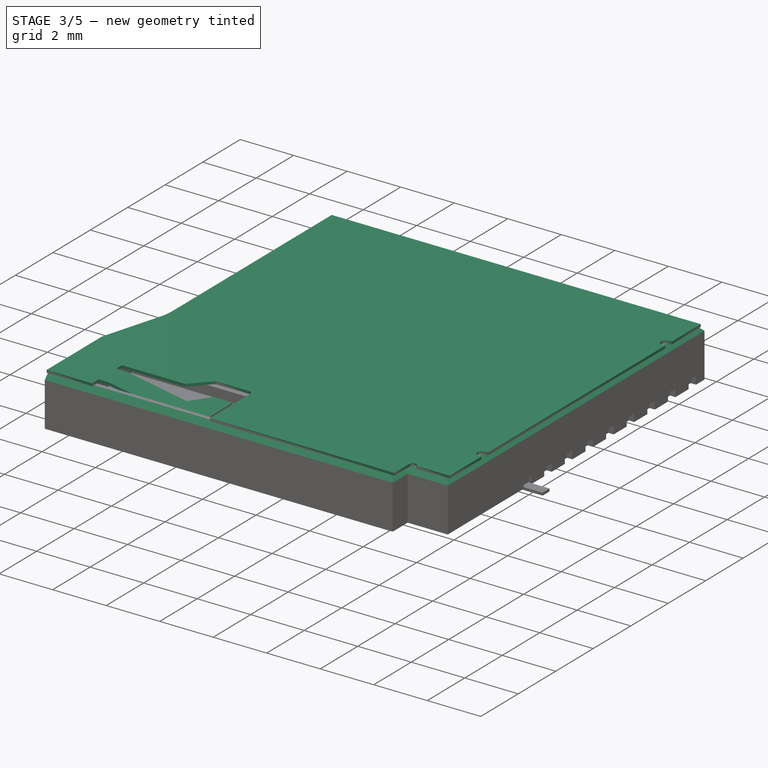
[diagram: stage 3 of 5 — iso view after this stage's code; geometry added in this stage tinted green]
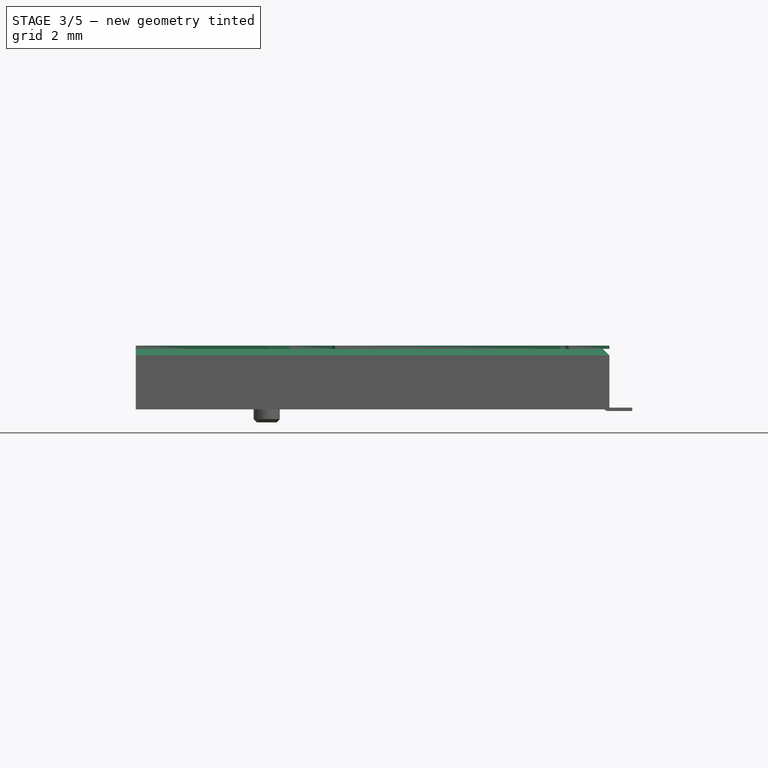
[diagram: stage 3 of 5 — front view after this stage's code; geometry added in this stage tinted green]
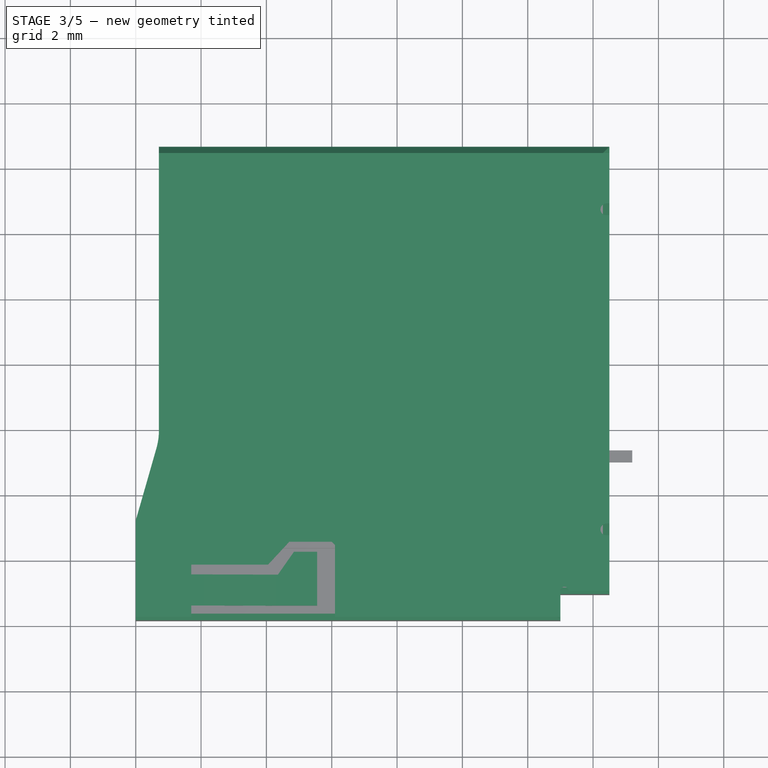
[diagram: stage 3 of 5 — top view after this stage's code; geometry added in this stage tinted green]
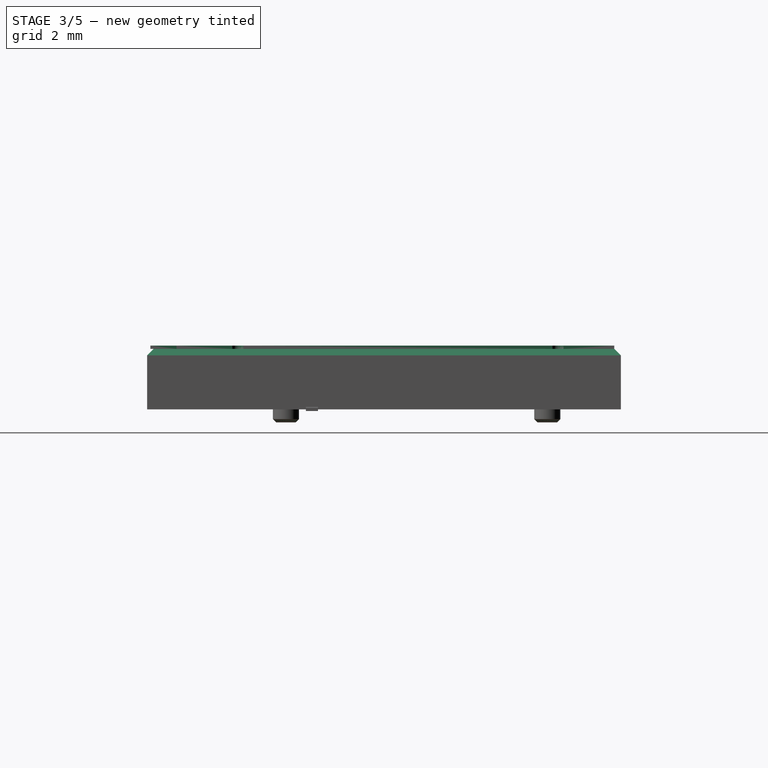
[diagram: stage 3 of 5 — right view after this stage's code; geometry added in this stage tinted green]
FEATURE [Image::ImagePlane] ImagePlane
  Placement = pos=(-6.4,-17.2,-0.1) rot=(0,0,1;0rad)
  XSize = 61.4846
  YSize = 86.9568
FEATURE [Sketcher::SketchObject] Sketch002
  AttachmentOffset = pos=(0,0,1.9) rot=(0,0,1;0rad)
  MapMode = 5
  Placement = pos=(0,0,1.9) rot=(0,0,1;0rad)
  Support = -> [XY_Plane002]
  sketch-geometry (32):
    g0: LineSegment StartX=0.71 StartY=14.45 StartZ=0 EndX=0.71 EndY=5.95 EndZ=0
    g1: LineSegment StartX=0.634493 StartY=5.41274 StartZ=0 EndX=0 EndY=3.2 EndZ=0
    g2: LineSegment StartX=0 StartY=3.2 StartZ=0 EndX=0 EndY=0.25 EndZ=0
    g3: LineSegment StartX=13 StartY=0.25 StartZ=0 EndX=13 EndY=1.05 EndZ=0
    g4: LineSegment StartX=13.25 StartY=1.05 StartZ=0 EndX=14.5 EndY=1.05 EndZ=0
    g5: LineSegment StartX=0.71 StartY=14.45 StartZ=0 EndX=3.15 EndY=14.45 EndZ=0
    g6: LineSegment StartX=3.15 StartY=14.45 StartZ=0 EndX=5.45 EndY=14.45 EndZ=0
    g7: ArcOfCircle CenterX=-1.23915 CenterY=5.95 CenterZ=0 NormalX=0 NormalY=0 NormalZ=1 AngleXU=0 Radius=1.94915 StartAngle=6.00393 EndAngle=6.28319
    g8: LineSegment StartX=14.5 StartY=14.45 StartZ=0 EndX=14.5 EndY=12.9 EndZ=0
    g9: LineSegment StartX=14.5 StartY=1.05 StartZ=0 EndX=14.5 EndY=2.75 EndZ=0
    g10: LineSegment StartX=14.4 StartY=12.55 StartZ=0 EndX=14.5 EndY=12.55 EndZ=0
    g11: ArcOfCircle CenterX=14.4 CenterY=12.725 CenterZ=0 NormalX=0 NormalY=0 NormalZ=1 AngleXU=0 Radius=0.175 StartAngle=1.5708 EndAngle=4.71239
    g12: LineSegment StartX=14.4 StartY=12.9 StartZ=0 EndX=14.5 EndY=12.9 EndZ=0
    g13: ArcOfCircle CenterX=14.4 CenterY=2.925 CenterZ=0 NormalX=0 NormalY=0 NormalZ=1 AngleXU=0 Radius=0.175 StartAngle=1.5708 EndAngle=4.71239
    g14: LineSegment StartX=14.4 StartY=2.75 StartZ=0 EndX=14.5 EndY=2.75 EndZ=0
    g15: LineSegment StartX=14.4 StartY=3.1 StartZ=0 EndX=14.5 EndY=3.1 EndZ=0
    g16: LineSegment StartX=1.7 StartY=1.85 StartZ=0 EndX=4.05 EndY=1.85 EndZ=0
    g17: LineSegment StartX=4.05 StartY=1.85 StartZ=0 EndX=4.7 EndY=2.55 EndZ=0
    g18: LineSegment StartX=4.7 StartY=2.55 StartZ=0 EndX=6 EndY=2.55 EndZ=0
    g19: LineSegment StartX=6 StartY=2.55 StartZ=0 EndX=6.1 EndY=2.45 EndZ=0
    g20: LineSegment StartX=6.1 StartY=2.45 StartZ=0 EndX=6.1 EndY=0.25 EndZ=0
    g21: LineSegment StartX=1.7 StartY=0.25 StartZ=0 EndX=1.7 EndY=0.6 EndZ=0
    g22: LineSegment StartX=1.7 StartY=1.55 StartZ=0 EndX=1.7 EndY=1.85 EndZ=0
    g23: LineSegment StartX=2.05 StartY=1.55 StartZ=0 EndX=1.7 EndY=1.55 EndZ=0
    g24: LineSegment StartX=0 StartY=0.25 StartZ=0 EndX=1.7 EndY=0.25 EndZ=0
    g25: LineSegment StartX=6.1 StartY=0.25 StartZ=0 EndX=13 EndY=0.25 EndZ=0
    g26: LineSegment StartX=14.5 StartY=3.1 StartZ=0 EndX=14.5 EndY=12.55 EndZ=0
    g27: ArcOfCircle CenterX=13.125 CenterY=1.05 CenterZ=0 NormalX=0 NormalY=0 NormalZ=1 AngleXU=0 Radius=0.125 StartAngle=2e-16 EndAngle=3.14159
    g28: LineSegment StartX=1.7 StartY=0.6 StartZ=0 EndX=2.05 EndY=0.6 EndZ=0
    g29: LineSegment StartX=2.05 StartY=0.6 StartZ=0 EndX=2.05 EndY=1.55 EndZ=0
    g30: LineSegment StartX=5.45 StartY=14.45 StartZ=0 EndX=13.4 EndY=14.45 EndZ=0
    g31: LineSegment StartX=14.5 StartY=14.45 StartZ=0 EndX=13.4 EndY=14.45 EndZ=0
  constraints (95):
    c: Vertical(g0)
    c: Coincident(g1,g2)
    c: Vertical(g2)
    c: Vertical(g3)
    c: Horizontal(g4)
    c: DistanceX(g2,g4) = 14.5
    c: DistanceY(g2,g0) = 14.2
    c: DistanceX(g0,g8) = 13.79
    c: DistanceX(g6,g8) = 9.05
    c: Horizontal(g5)
    c: Coincident(g5,g6)
    c: DistanceX(g5,g6) = 2.3
    c: Tangent(g1,g7) = 1.5708
    c: Tangent(g0,g7) = 1.5708
    c: Angle(g7) = 0.279253
    c: DistanceY(g2,g2) = 2.95
    c: DistanceY(g0,g0) = 8.5
    c: Coincident(g0,g5)
    c: Vertical(g8)
    c: Coincident(g9,g4)
    c: Vertical(g9)
    c: Horizontal(g10)
    c: Vertical(g8,g4)
    c: DistanceY(g15,g10) = 9.45
    c: DistanceY(g8,g8) = 1.55
    c: Tangent(g11,g12) = 1.5708
    c: Coincident(g8,g12)
    c: Horizontal(g12)
    c: DistanceY(g10,g8) = 0.35
    c: DistanceX(g11,g8) = 0.1
    c: Tangent(g13,g15) = 1.5708
    c: Tangent(g13,g14) = -1.5708
    c: Horizontal(g14)
    c: Coincident(g9,g14)
    c: Horizontal(g15)
    c: Vertical(g13,g11)
    c: DistanceY(g9,g15) = 0.35
    c: Coincident(g10,g11)
    c: Vertical(g10,g11)
    c: Vertical(g2,g-1)
    c: DistanceY(g-1,g2) = 0.25
    c: Horizontal(g16)
    c: Coincident(g16,g17)
    c: Coincident(g17,g18)
    c: Horizontal(g18)
    c: Coincident(g18,g19)
    c: Coincident(g19,g20)
    c: Vertical(g20)
    c: Vertical(g21)
    c: Vertical(g22)
    c: Coincident(g16,g22)
    c: Coincident(g23,g22)
    c: Horizontal(g23)
    c: Coincident(g24,g2)
    c: Coincident(g24,g21)
    c: Horizontal(g24)
    c: Coincident(g25,g20)
    c: Coincident(g25,g3)
    c: Horizontal(g25)
    c: Horizontal(g20,g21)
    c: Vertical(g21,g22)
    c: DistanceX(g24,g24) = 1.7
    c: DistanceY(g21,g21) = 0.35
    c: DistanceY(g22,g22) = 0.3
    c: DistanceX(g23,g23) = 0.35
    c: DistanceX(g16,g16) = 2.35
    c: DistanceX(g16,g17) = 0.65
    c: DistanceY(g21,g22) = 0.95
    c: DistanceY(g20,g20) = 2.2
    c: DistanceY(g19,g18) = 0.1
    c: Angle(g19) = -0.785398
    c: Horizontal(g6)
    c: Vertical(g15,g9)
    c: Coincident(g26,g15)
    c: Coincident(g26,g10)
    c: Vertical(g26)
    c: DistanceX(g3,g4) = 1.5
    c: Horizontal(g4,g3)
    c: Coincident(g27,g4)
    c: Coincident(g27,g3)
    c: Horizontal(g4,g27)
    c: DistanceX(g4,g4) = 1.25
    c: DistanceY(g9,g9) = 1.7
    c: Coincident(g28,g21)
    c: Horizontal(g28)
    c: Coincident(g29,g28)
    c: Coincident(g29,g23)
    c: Vertical(g29)
    c: DistanceX(g17,g19) = 1.4
    c: Coincident(g30,g6)
    c: Horizontal(g30)
    c: Coincident(g31,g8)
    c: Coincident(g31,g30)
    c: Horizontal(g31)
    c: DistanceX(g31,g31) = 1.1
FEATURE [PartDesign::Pad] Pad002
  Length = 0.1
  Length2 = 100
  Profile = -> Sketch002
  Type = 0
FEATURE [PartDesign::FeaturePython] Bend  # WARN: FeaturePython — macro-defined, semantics opaque (R4)
  AutoMiter = true
  BaseFeature = -> Pad002
  BendType = 0
  LengthList = [2.1]
  ReliefFactor = 0.7
  UseReliefFactor = false
  angle = -10
  baseObject = -> Pad002 [Face9]
  bendAList = [-10]
  extend1 = 0
  extend2 = 0
  gap1 = 0
  gap2 = 0
  invert = false
  kfactor = 0.5
  length = 2.1
  miterangle1 = 0
  miterangle2 = 0
  offset = 0
  radius = 0.25
  reliefType = 0
  reliefd = 1
  reliefw = 0.8
  sketchflip = false
  sketchinvert = false
  unfold = false
FEATURE [PartDesign::FeaturePython] Bend001  # WARN: FeaturePython — macro-defined, semantics opaque (R4)
  AutoMiter = true
  BaseFeature = -> Bend
  BendType = 0
  LengthList = [1.2]
  ReliefFactor = 0.7
  UseReliefFactor = false
  angle = 10
  baseObject = -> Bend [Face3]
  bendAList = [10]
  extend1 = 0
  extend2 = 0.7
  gap1 = 0
  gap2 = 0
  invert = false
  kfactor = 0.5
  length = 1.2
  miterangle1 = 0
  miterangle2 = 0
  offset = 0
  radius = 1
  reliefType = 0
  reliefd = 1
  reliefw = 0.8
  sketchflip = false
  sketchinvert = false
  unfold = false
FEATURE [Sketcher::SketchObject] Sketch003
  MapMode = 6
  Placement = pos=(4.35252,1.55,1.61483) rot=(0,0,1;3.14159rad)
  Support = -> [Bend001]
  sketch-geometry (3):
    g0: LineSegment StartX=0 StartY=0 StartZ=0 EndX=-0.598509 EndY=-0.854759 EndZ=0
    g1: LineSegment StartX=-0.598509 StartY=-0.854759 StartZ=0 EndX=0 EndY=-0.854759 EndZ=0
    g2: LineSegment StartX=0 StartY=-0.854759 StartZ=0 EndX=0 EndY=0 EndZ=0
  constraints (7):
    c: Coincident(g0,g-1)
    c: Coincident(g1,g0)
    c: PointOnObject(g1,g-2)
    c: Horizontal(g1)
    c: Coincident(g2,g1)
    c: Coincident(g2,g0)
    c: Angle(g0) = -2.18166
FEATURE [PartDesign::Pocket] Pocket
  BaseFeature = -> Bend001
  Length = 5
  Length2 = 100
  Profile = -> Sketch003
  Type = 1
FEATURE [PartDesign::Body] Body002  label="Frame"
  Group = -> [Sketch002,Pad002,Bend,Bend001,Sketch003,Pocket,Bend002,Bend003,Bend004,Bend005,Bend006,Bend007,Bend008,Bend009,Bend010,Bend011,Extend,Bend012,Fillet]
  Origin = -> Origin002
  Tip = -> Fillet
FEATURE [Part::Feature] Part__Feature084  label="MicroSD"
  Placement = pos=(4.87921,8.3,1.1) rot=(1,0,0;1.5708rad)
  shape: bbox 15 x 11.43 x 1.06 mm, 373 faces (baked)
FEATURE [Sketcher::SketchObject] Sketch007
  AttachmentOffset = pos=(14.45,0.1,-5.01) rot=(0,0,1;0rad)
  MapMode = 5
  Placement = pos=(14.45,5.01,0.1) rot=(1,0,0;1.5708rad)
  Support = -> [XZ_Plane003]
  sketch-geometry (8):
    g0: LineSegment StartX=-0.124999 StartY=0.425 StartZ=0 EndX=-0.124999 EndY=0.025 EndZ=0
    g1: LineSegment StartX=9.69462e-07 StartY=-0.1 StartZ=0 EndX=0.750001 EndY=-0.1 EndZ=0
    g2: LineSegment StartX=0.750001 StartY=-0.1 StartZ=0 EndX=0.750001 EndY=0 EndZ=0
    g3: LineSegment StartX=0.750001 StartY=0 StartZ=0 EndX=0 EndY=0 EndZ=0
    g4: LineSegment StartX=-0.024999 StartY=0.024999 StartZ=0 EndX=-0.024999 EndY=0.425 EndZ=0
    g5: LineSegment StartX=-0.024999 StartY=0.425 StartZ=0 EndX=-0.124999 EndY=0.425 EndZ=0
    g6: ArcOfCircle CenterX=9.69462e-07 CenterY=0.025 CenterZ=0 NormalX=0 NormalY=0 NormalZ=1 AngleXU=0 Radius=0.125 StartAngle=3.14159 EndAngle=4.71239
    g7: ArcOfCircle CenterX=0 CenterY=0.024999 CenterZ=0 NormalX=0 NormalY=0 NormalZ=1 AngleXU=0 Radius=0.024999 StartAngle=3.14159 EndAngle=4.71239
  constraints (21):
    c: Vertical(g0)
    c: Horizontal(g1)
    c: Coincident(g1,g2)
    c: Coincident(g2,g3)
    c: Coincident(g4,g5)
    c: Coincident(g5,g0)
    c: Horizontal(g5)
    c: Horizontal(g3)
    c: Vertical(g4)
    c: Vertical(g2)
    c: DistanceY(g2,g2) = 0.1
    c: Tangent(g1,g6) = -1.5708
    c: Tangent(g0,g6) = -1.5708
    c: Diameter(g6) = 0.25
    c: Tangent(g4,g7) = 1.5708
    c: Tangent(g3,g7) = 1.5708
    c: Equal(g2,g5)
    c: Distance(g3,g1) = 0.1
    c: Coincident(g3,g-1)
    c: DistanceX(g1,g1) = 0.75
    c: DistanceY(g0,g0) = 0.4
FEATURE [PartDesign::Pad] Pad004
  Length = 0.37
  Length2 = 100
  Placement = pos=(0,0,0) rot=(1,0,0;1.5708rad)
  Profile = -> Sketch007
  Reversed = true
  Type = 0
FEATURE [PartDesign::Chamfer] Chamfer
  Base = -> Pocket003 [Edge154,Edge156]
  BaseFeature = -> Pocket003
  Size = 0.1
FEATURE [PartDesign::Chamfer] Chamfer001
  Base = -> Chamfer [Edge54,Edge82,Edge130,Edge132,Edge134,Edge144,Edge143,Edge142,Edge139,Edge137,Edge136]
  BaseFeature = -> Chamfer
  Size = 0.2
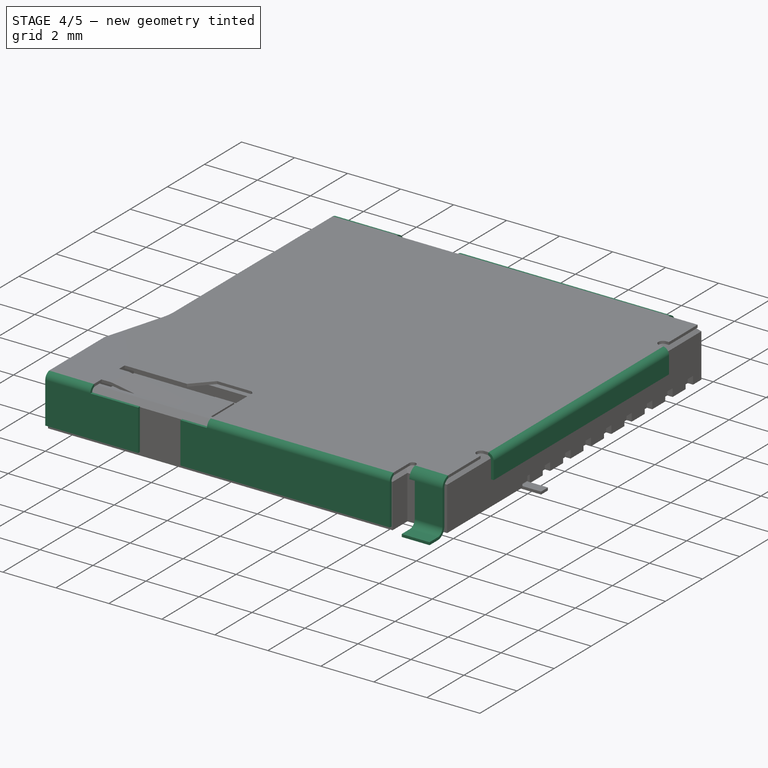
[diagram: stage 4 of 5 — iso view after this stage's code; geometry added in this stage tinted green]
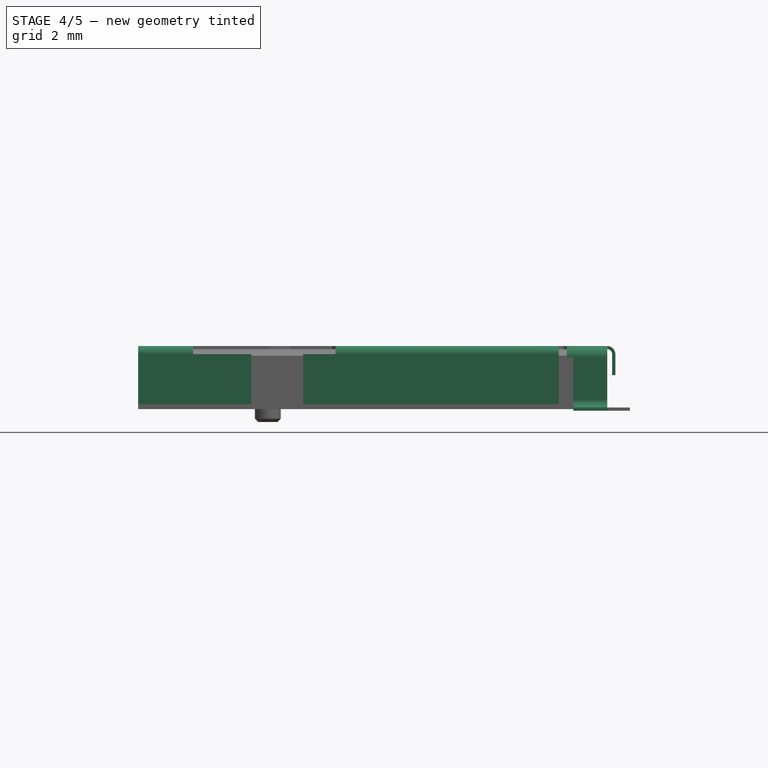
[diagram: stage 4 of 5 — front view after this stage's code; geometry added in this stage tinted green]
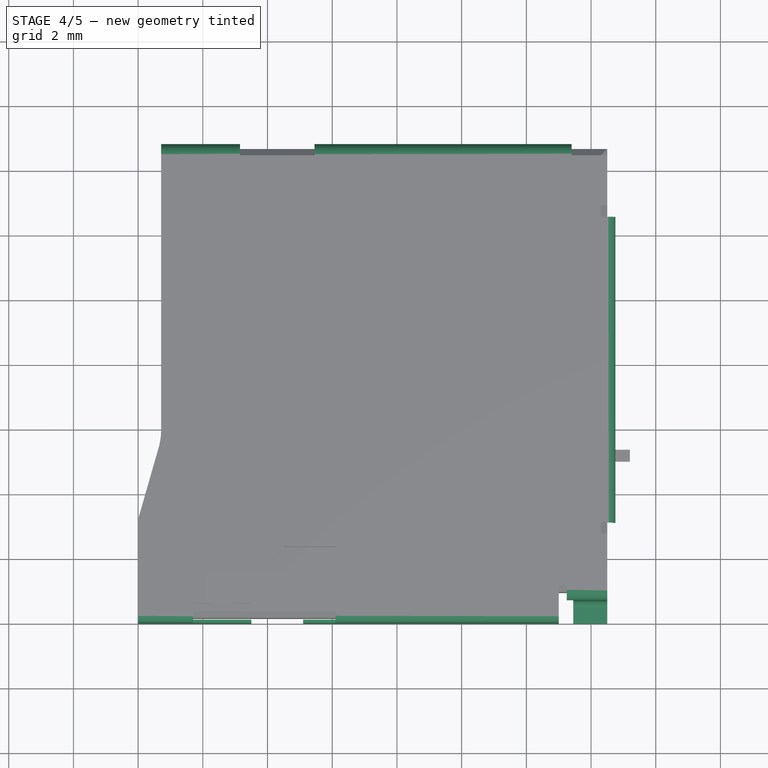
[diagram: stage 4 of 5 — top view after this stage's code; geometry added in this stage tinted green]
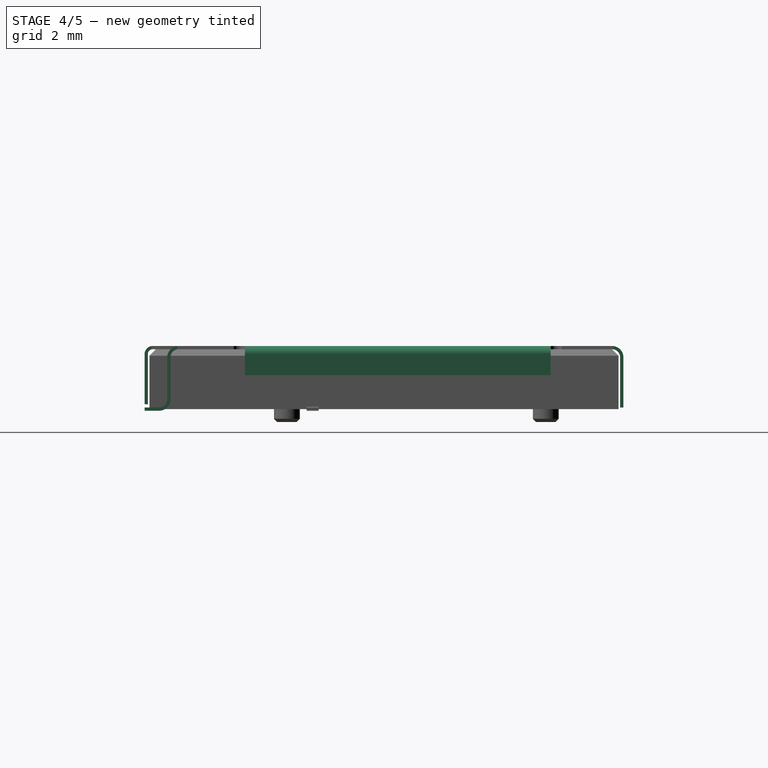
[diagram: stage 4 of 5 — right view after this stage's code; geometry added in this stage tinted green]
FEATURE [PartDesign::FeaturePython] Bend002  # WARN: FeaturePython — macro-defined, semantics opaque (R4)
  AutoMiter = true
  BaseFeature = -> Pocket
  BendType = 0
  LengthList = [1.3]
  ReliefFactor = 0.7
  UseReliefFactor = false
  angle = -90
  baseObject = -> Pocket [Face39]
  bendAList = [-90]
  extend1 = -0.2
  extend2 = 0
  gap1 = 0
  gap2 = 0
  invert = false
  kfactor = 0.5
  length = 1.3
  miterangle1 = 0
  miterangle2 = 0
  offset = 0
  radius = 0.25
  reliefType = 0
  reliefd = 1
  reliefw = 0.8
  sketchflip = false
  sketchinvert = false
  unfold = false
FEATURE [PartDesign::FeaturePython] Bend003  # WARN: FeaturePython — macro-defined, semantics opaque (R4)
  AutoMiter = true
  BaseFeature = -> Bend002
  BendType = 0
  LengthList = [0.45]
  ReliefFactor = 0.7
  UseReliefFactor = false
  angle = 90
  baseObject = -> Bend002 [Face3]
  bendAList = [90]
  extend1 = 0
  extend2 = 0
  gap1 = 0
  gap2 = 0
  invert = false
  kfactor = 0.5
  length = 0.45
  miterangle1 = 0
  miterangle2 = 0
  offset = 0
  radius = 0.25
  reliefType = 0
  reliefd = 1
  reliefw = 0.8
  sketchflip = false
  sketchinvert = false
  unfold = false
FEATURE [PartDesign::FeaturePython] Bend004  # WARN: FeaturePython — macro-defined, semantics opaque (R4)
  AutoMiter = true
  BaseFeature = -> Bend003
  BendType = 0
  LengthList = [1.55]
  ReliefFactor = 0.7
  UseReliefFactor = false
  angle = -90
  baseObject = -> Bend003 [Face39]
  bendAList = [-90]
  extend1 = 1
  extend2 = 0
  gap1 = 0
  gap2 = 0
  invert = false
  kfactor = 0.5
  length = 1.55
  miterangle1 = 0
  miterangle2 = 0
  offset = 0
  radius = 0.15
  reliefType = 0
  reliefd = 1
  reliefw = 0.8
  sketchflip = false
  sketchinvert = false
  unfold = false
FEATURE [PartDesign::FeaturePython] Bend005  # WARN: FeaturePython — macro-defined, semantics opaque (R4)
  AutoMiter = true
  BaseFeature = -> Bend004
  BendType = 0
  LengthList = [1.55]
  ReliefFactor = 0.7
  UseReliefFactor = false
  angle = -90
  baseObject = -> Bend004 [Face21]
  bendAList = [-90]
  extend1 = 0
  extend2 = 1.8
  gap1 = 0
  gap2 = 0
  invert = false
  kfactor = 0.5
  length = 1.55
  miterangle1 = 0
  miterangle2 = 0
  offset = 0
  radius = 0.15
  reliefType = 0
  reliefd = 1
  reliefw = 0.8
  sketchflip = false
  sketchinvert = false
  unfold = false
FEATURE [PartDesign::FeaturePython] Bend006  # WARN: FeaturePython — macro-defined, semantics opaque (R4)
  AutoMiter = true
  BaseFeature = -> Bend005
  BendType = 0
  LengthList = [1.55]
  ReliefFactor = 0.7
  UseReliefFactor = false
  angle = -90
  baseObject = -> Bend005 [Face16,Face42]
  bendAList = [-90]
  extend1 = 0
  extend2 = 0
  gap1 = 0
  gap2 = 0
  invert = false
  kfactor = 0.5
  length = 1.55
  miterangle1 = 0
  miterangle2 = 0
  offset = 0
  radius = 0.25
  reliefType = 0
  reliefd = 1
  reliefw = 0.8
  sketchflip = false
  sketchinvert = false
  unfold = false
FEATURE [PartDesign::FeaturePython] Bend007  # WARN: FeaturePython — macro-defined, semantics opaque (R4)
  AutoMiter = true
  BaseFeature = -> Bend006
  BendType = 0
  LengthList = [0.65]
  ReliefFactor = 0.7
  UseReliefFactor = false
  angle = -90
  baseObject = -> Bend006 [Face39]
  bendAList = [-90]
  extend1 = 0
  extend2 = 0
  gap1 = 0
  gap2 = 0
  invert = false
  kfactor = 0.5
  length = 0.65
  miterangle1 = 0
  miterangle2 = 0
  offset = 0
  radius = 0.15
  reliefType = 0
  reliefd = 1
  reliefw = 0.8
  sketchflip = false
  sketchinvert = false
  unfold = false
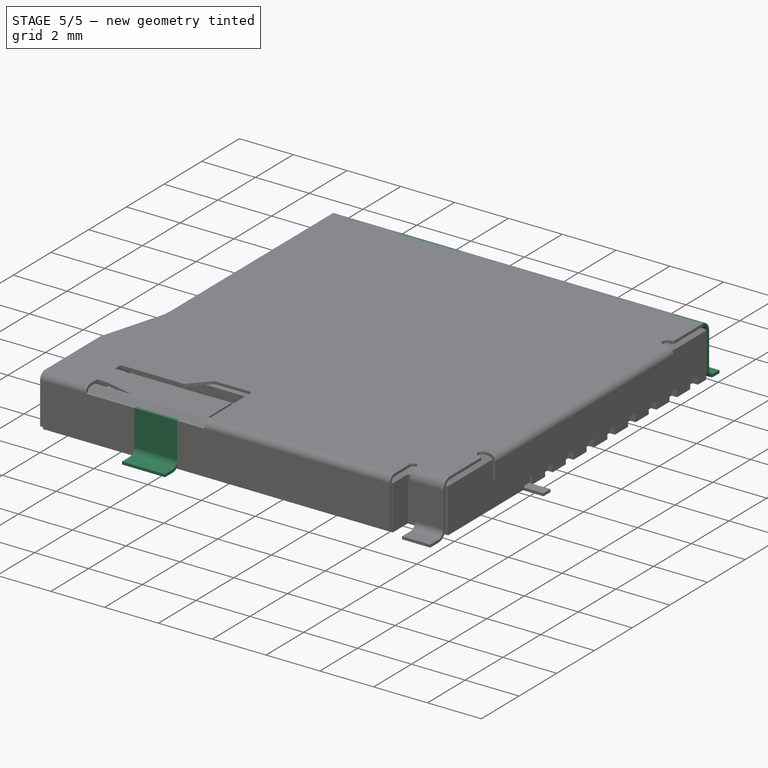
[diagram: stage 5 of 5 — iso view after this stage's code; geometry added in this stage tinted green]
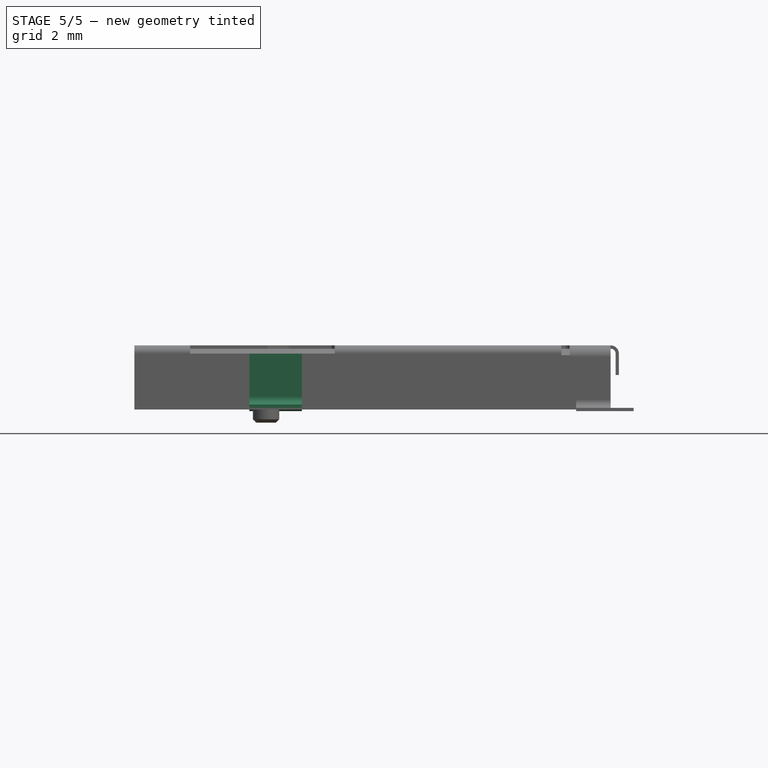
[diagram: stage 5 of 5 — front view after this stage's code; geometry added in this stage tinted green]
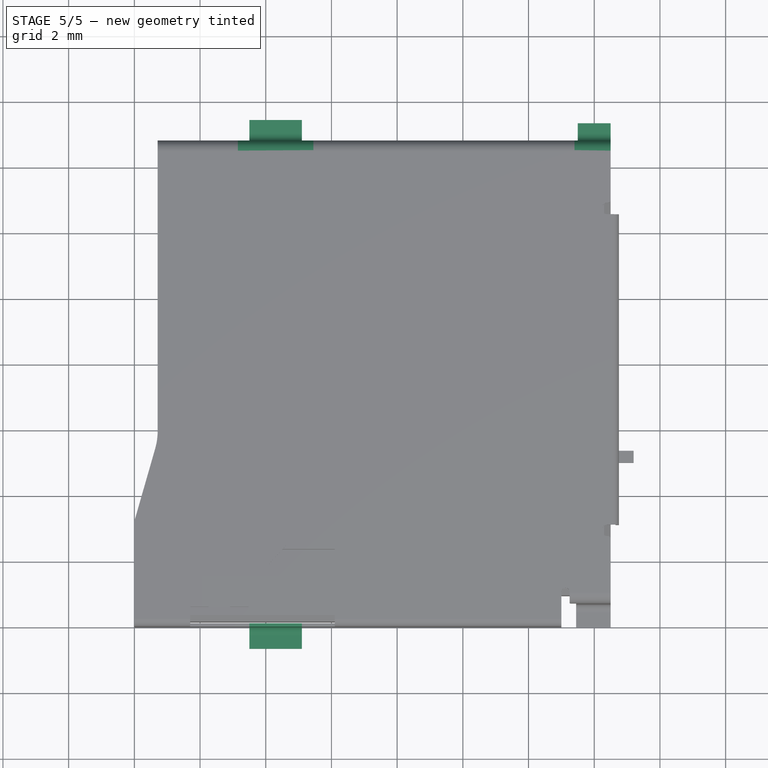
[diagram: stage 5 of 5 — top view after this stage's code; geometry added in this stage tinted green]
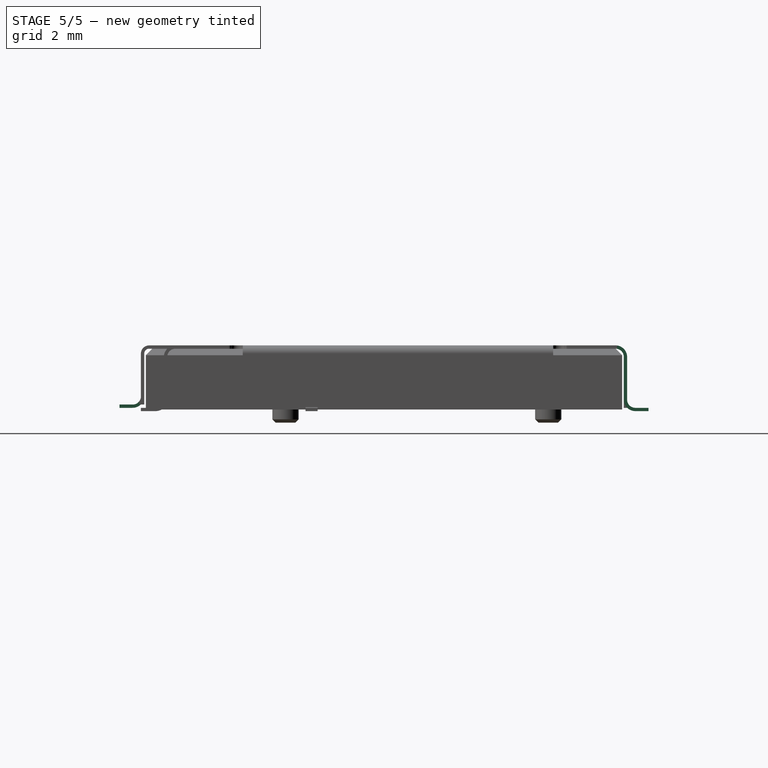
[diagram: stage 5 of 5 — right view after this stage's code; geometry added in this stage tinted green]
FEATURE [PartDesign::FeaturePython] Bend008  # WARN: FeaturePython — macro-defined, semantics opaque (R4)
  AutoMiter = true
  BaseFeature = -> Bend007
  BendType = 0
  LengthList = [1.3]
  ReliefFactor = 0.7
  UseReliefFactor = false
  angle = -90
  baseObject = -> Bend007 [Face40]
  bendAList = [-90]
  extend1 = 0
  extend2 = 0
  gap1 = 0
  gap2 = 0
  invert = false
  kfactor = 0.5
  length = 1.3
  miterangle1 = 0
  miterangle2 = 0
  offset = 0
  radius = 0.25
  reliefType = 0
  reliefd = 0
  reliefw = 0.1
  sketchflip = false
  sketchinvert = false
  unfold = false
FEATURE [PartDesign::FeaturePython] Bend009  # WARN: FeaturePython — macro-defined, semantics opaque (R4)
  AutoMiter = true
  BaseFeature = -> Bend008
  BendType = 0
  LengthList = [0.3]
  ReliefFactor = 0.7
  UseReliefFactor = false
  angle = 90
  baseObject = -> Bend008 [Face3]
  bendAList = [90]
  extend1 = 0
  extend2 = 0
  gap1 = 0
  gap2 = 0.1
  invert = false
  kfactor = 0.5
  length = 0.3
  miterangle1 = 0
  miterangle2 = 0
  offset = 0
  radius = 0.25
  reliefType = 0
  reliefd = 0.5
  reliefw = 0.1
  sketchflip = false
  sketchinvert = false
  unfold = false
FEATURE [PartDesign::FeaturePython] Bend010  # WARN: FeaturePython — macro-defined, semantics opaque (R4)
  AutoMiter = true
  BaseFeature = -> Bend009
  BendType = 0
  LengthList = [1.3]
  ReliefFactor = 0.7
  UseReliefFactor = false
  angle = -90
  baseObject = -> Bend009 [Face58]
  bendAList = [-90]
  extend1 = 0
  extend2 = 0
  gap1 = 0
  gap2 = 0
  invert = false
  kfactor = 0.5
  length = 1.3
  miterangle1 = 0
  miterangle2 = 0
  offset = 0
  radius = 0.25
  reliefType = 0
  reliefd = 0
  reliefw = 0
  sketchflip = false
  sketchinvert = false
  unfold = false
FEATURE [PartDesign::FeaturePython] Bend011  # WARN: FeaturePython — macro-defined, semantics opaque (R4)
  AutoMiter = true
  BaseFeature = -> Bend010
  BendType = 0
  LengthList = [0.4]
  ReliefFactor = 0.7
  UseReliefFactor = false
  angle = 90
  baseObject = -> Bend010 [Face1]
  bendAList = [90]
  extend1 = 0
  extend2 = 0
  gap1 = 0.35
  gap2 = 0.35
  invert = false
  kfactor = 0.5
  length = 0.4
  miterangle1 = 0
  miterangle2 = 0
  offset = 0
  radius = 0.25
  reliefType = 0
  reliefd = 0.5
  reliefw = 0.35
  sketchflip = false
  sketchinvert = false
  unfold = false
FEATURE [PartDesign::FeaturePython] Extend  # WARN: FeaturePython — macro-defined, semantics opaque (R4)
  BaseFeature = -> Bend011
  baseObject = -> Bend011 [Face118]
  gap1 = 0
  gap2 = 0.25
  length = 1.6
FEATURE [PartDesign::FeaturePython] Bend012  # WARN: FeaturePython — macro-defined, semantics opaque (R4)
  AutoMiter = true
  BaseFeature = -> Extend
  BendType = 0
  LengthList = [0.4]
  ReliefFactor = 0.7
  UseReliefFactor = false
  angle = 90
  baseObject = -> Extend [Face12]
  bendAList = [90]
  extend1 = 0
  extend2 = 0
  gap1 = 0
  gap2 = 0
  invert = false
  kfactor = 0.5
  length = 0.4
  miterangle1 = 0
  miterangle2 = 0
  offset = 0
  radius = 0.25
  reliefType = 0
  reliefd = 1
  reliefw = 0.8
  sketchflip = false
  sketchinvert = false
  unfold = false
FEATURE [PartDesign::Fillet] Fillet
  Base = -> Bend012 [Edge194,Edge197,Edge142,Edge158]
  BaseFeature = -> Bend012
  Radius = 0.08
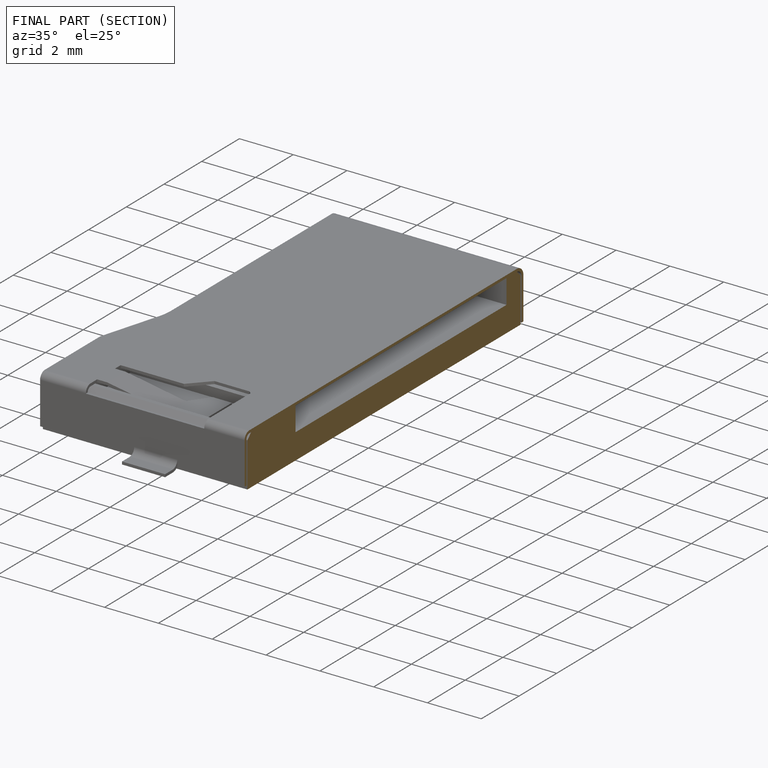
[diagram: finished part — half-section view (interior)]
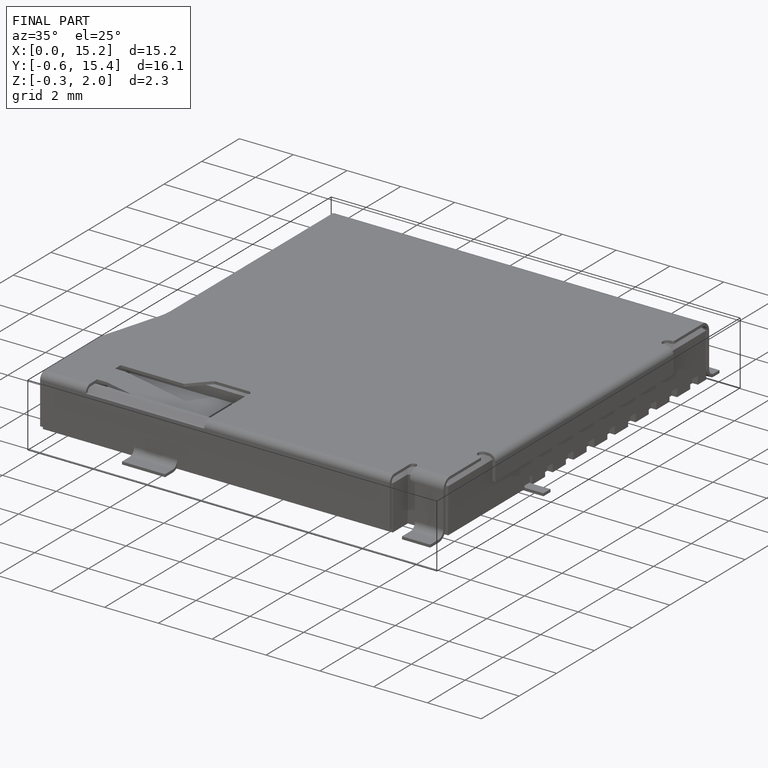
[diagram: finished part — iso view with bounding-box wireframe]
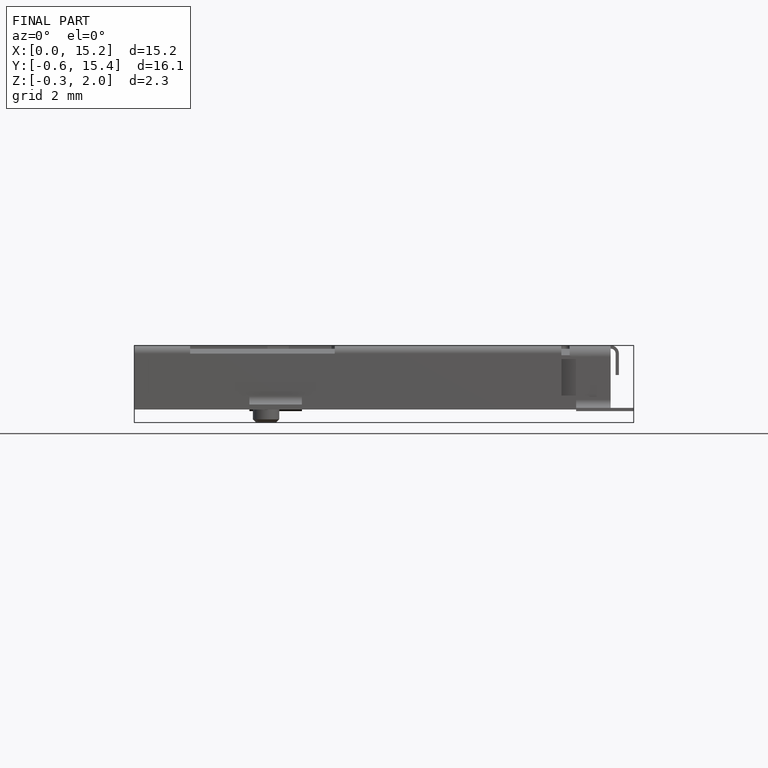
[diagram: finished part — front view with bounding-box wireframe]
